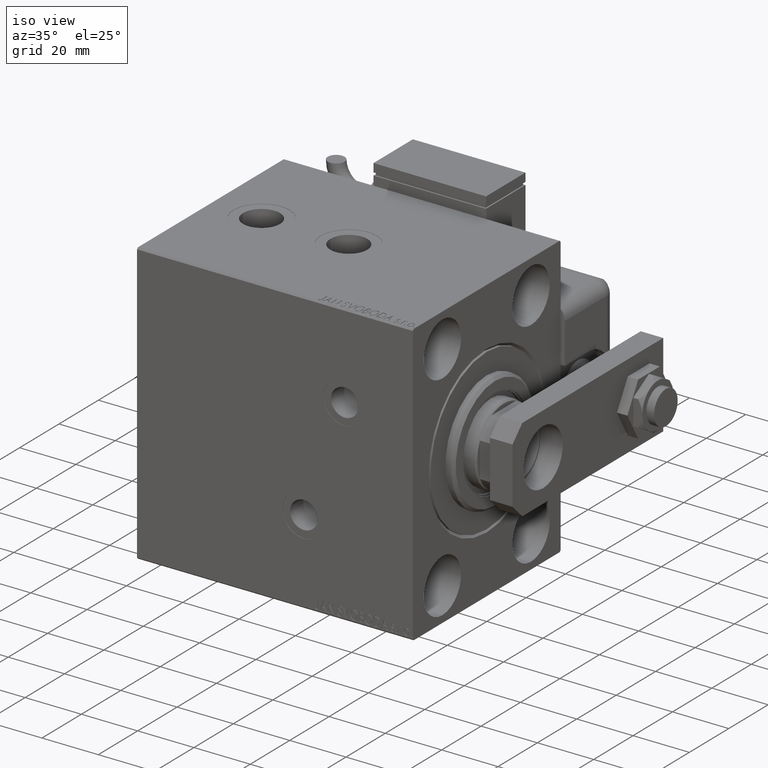
[diagram: clean part render]
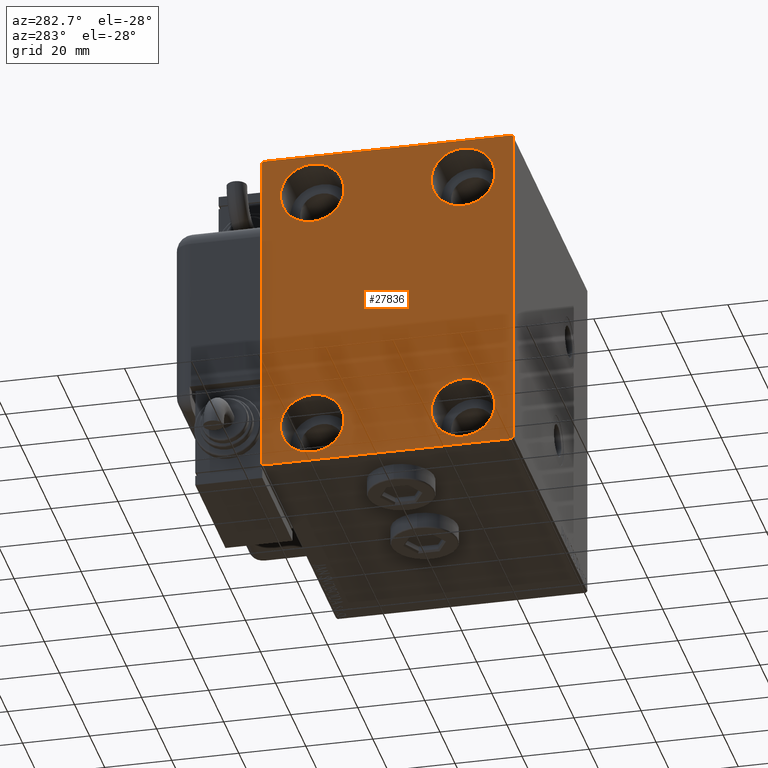
[diagram: tour spotlight — one face highlighted and labeled with its STEP entity id]
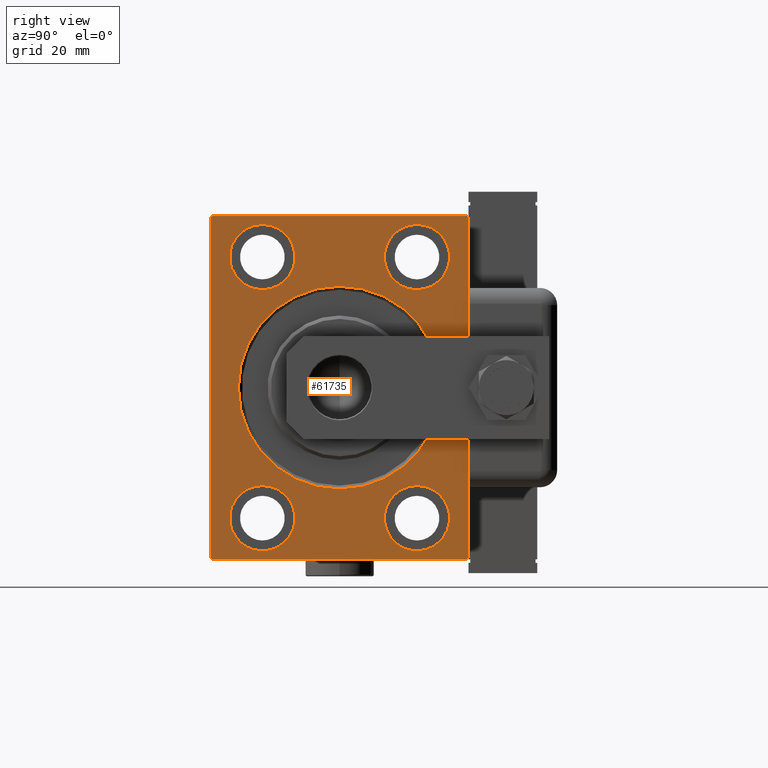
[diagram: tour spotlight — one face highlighted and labeled with its STEP entity id]
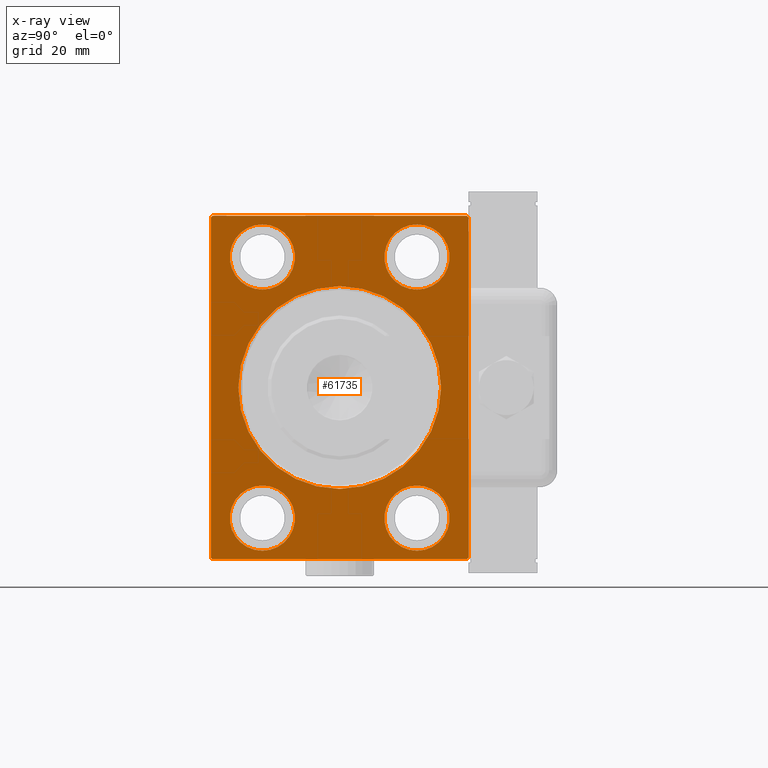
[diagram: x-ray of the same camera — body ghosted, this tour face saturated]
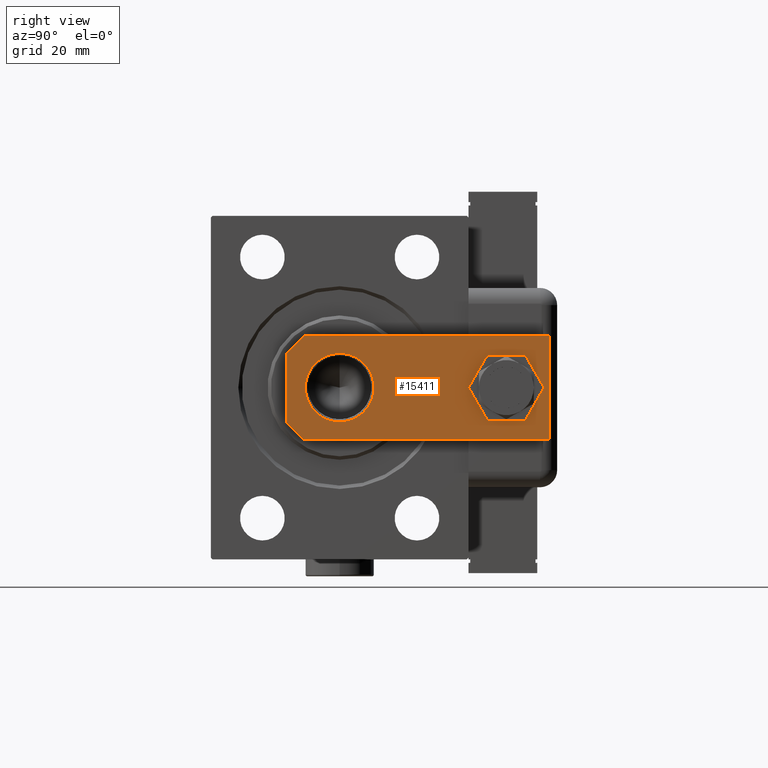
[diagram: tour spotlight — one face highlighted and labeled with its STEP entity id]
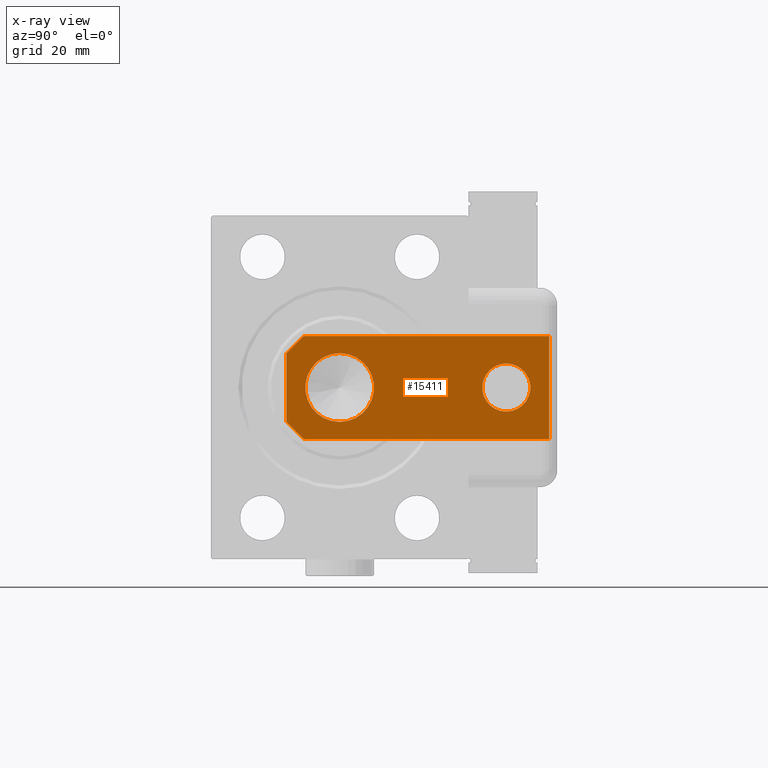
[diagram: x-ray of the same camera — body ghosted, this tour face saturated]
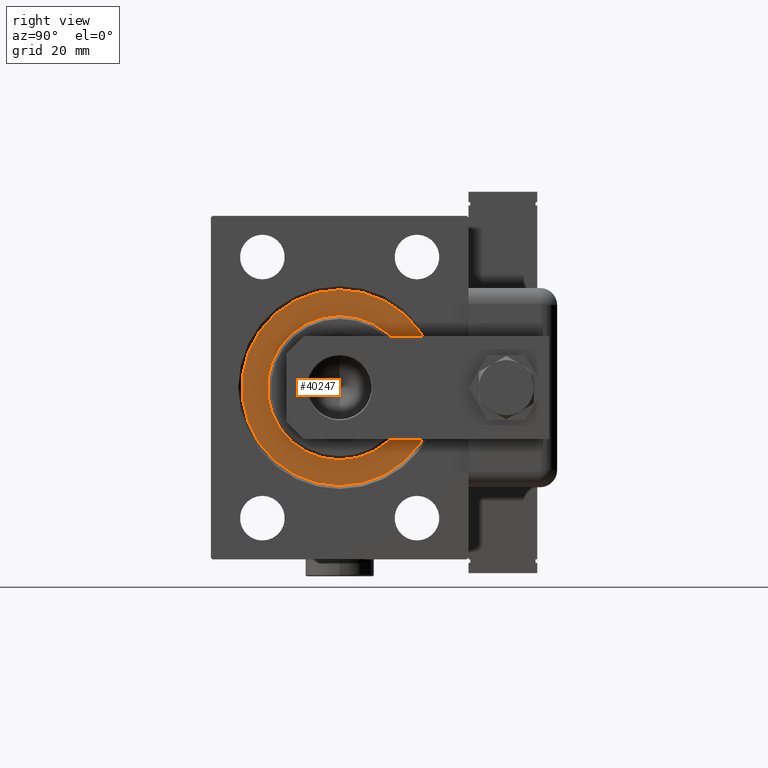
[diagram: tour spotlight — one face highlighted and labeled with its STEP entity id]
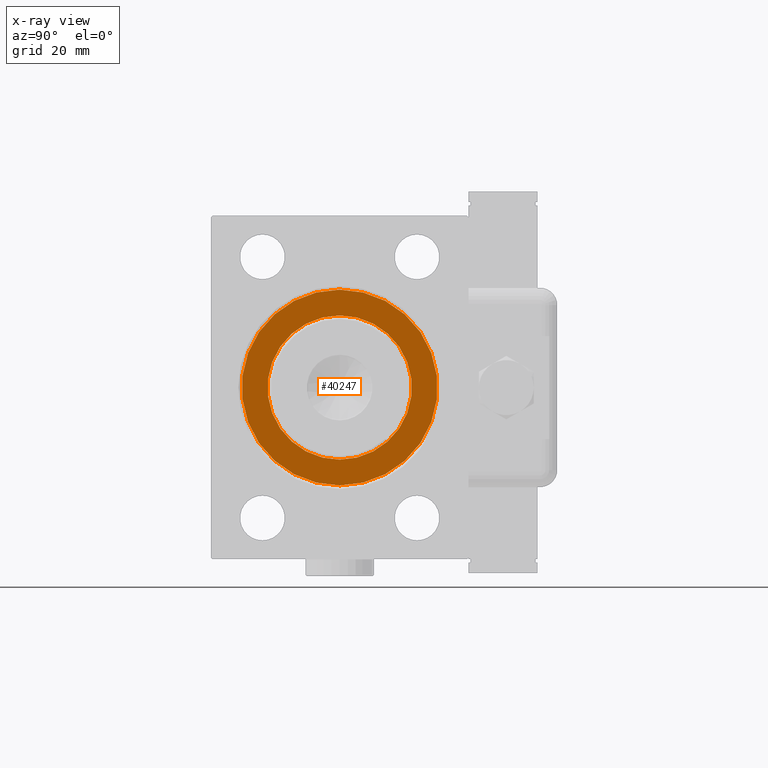
[diagram: x-ray of the same camera — body ghosted, this tour face saturated]
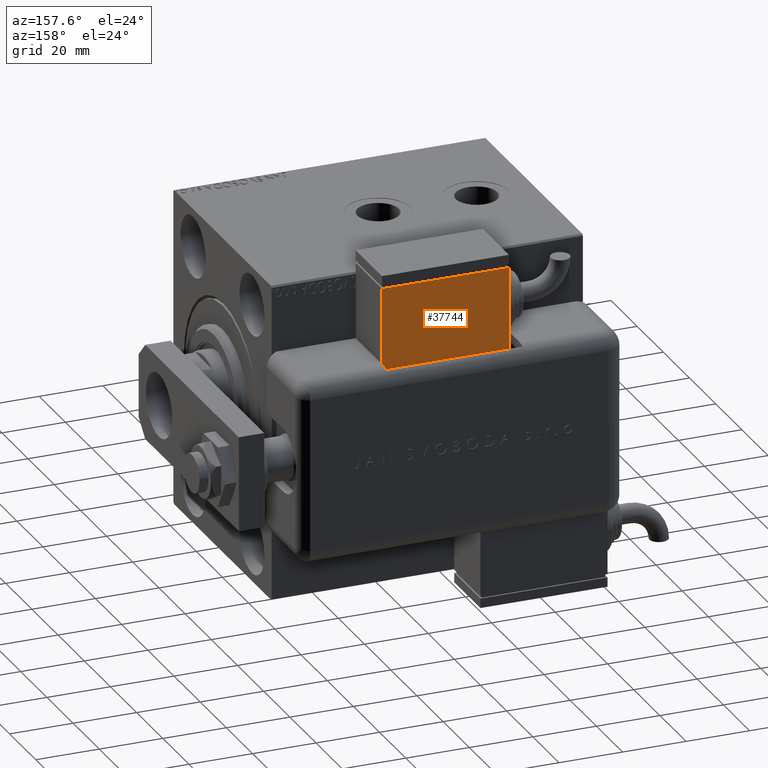
[diagram: tour spotlight — one face highlighted and labeled with its STEP entity id]
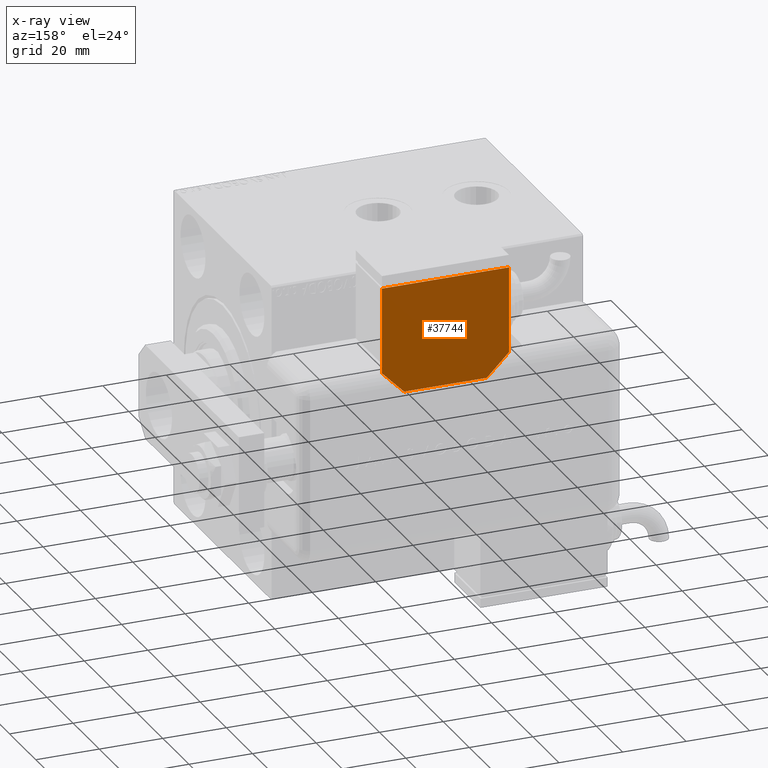
[diagram: x-ray of the same camera — body ghosted, this tour face saturated]
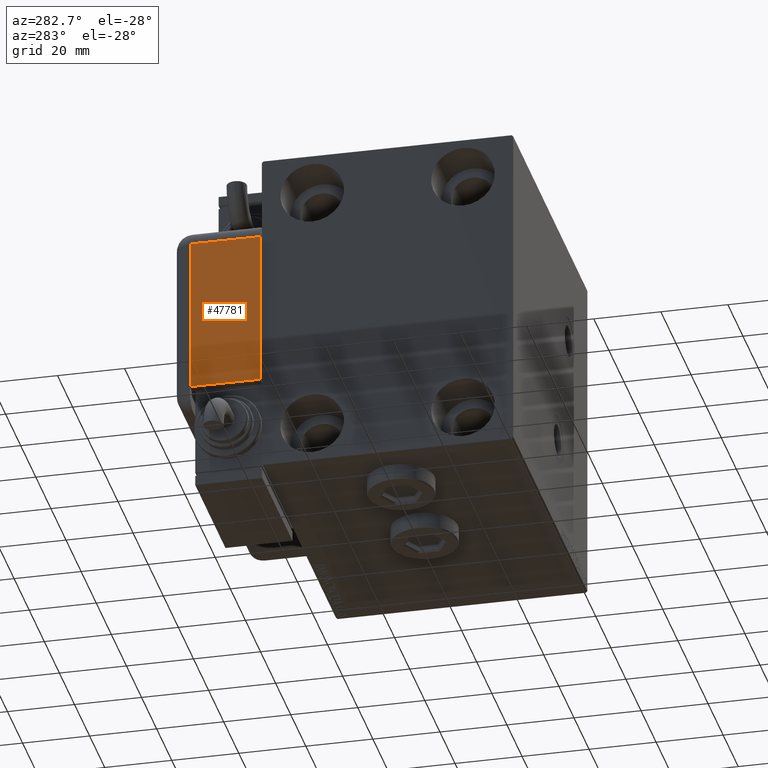
[diagram: tour spotlight — one face highlighted and labeled with its STEP entity id]
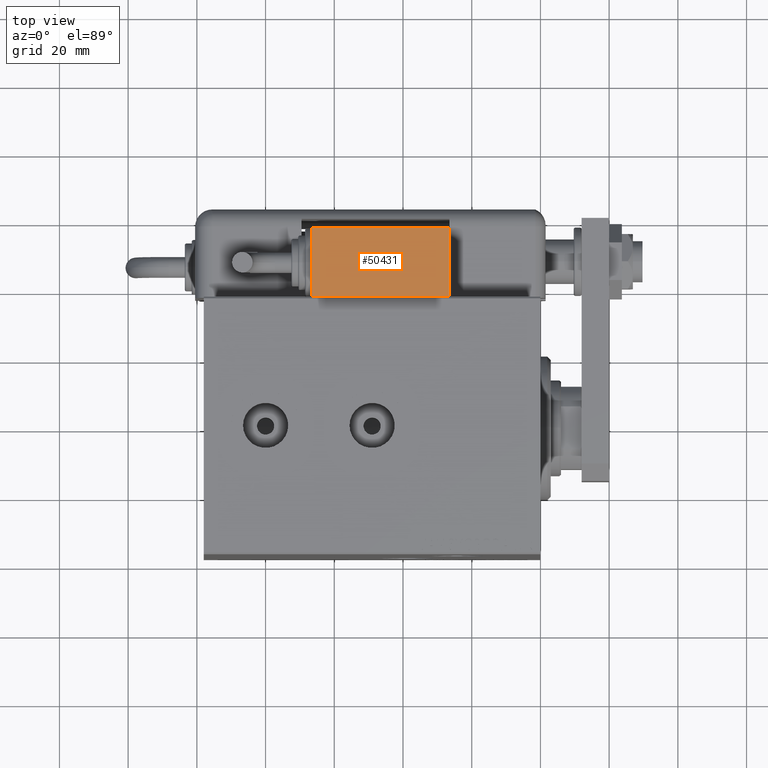
[diagram: tour spotlight — one face highlighted and labeled with its STEP entity id]
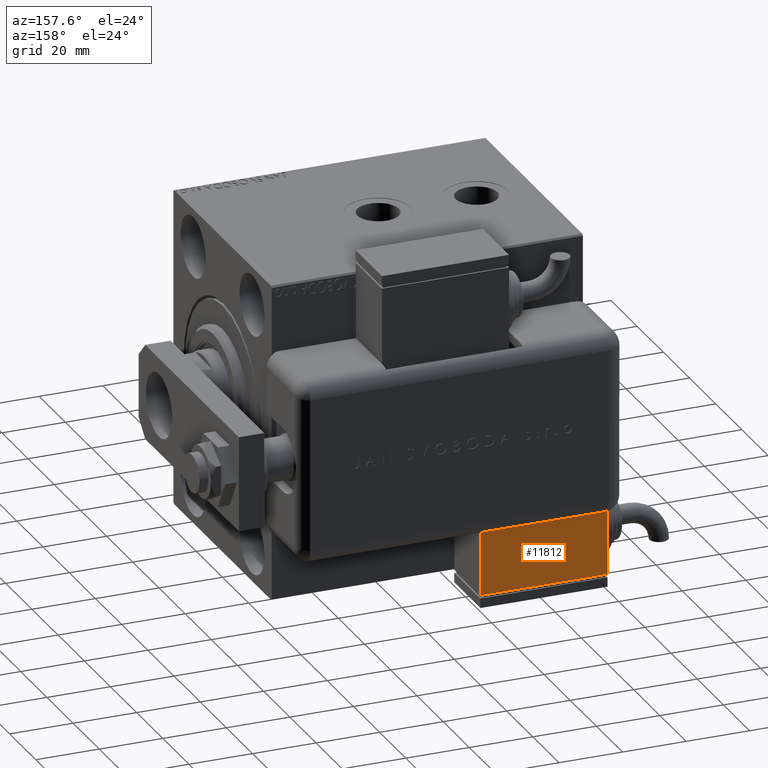
[diagram: tour spotlight — one face highlighted and labeled with its STEP entity id]
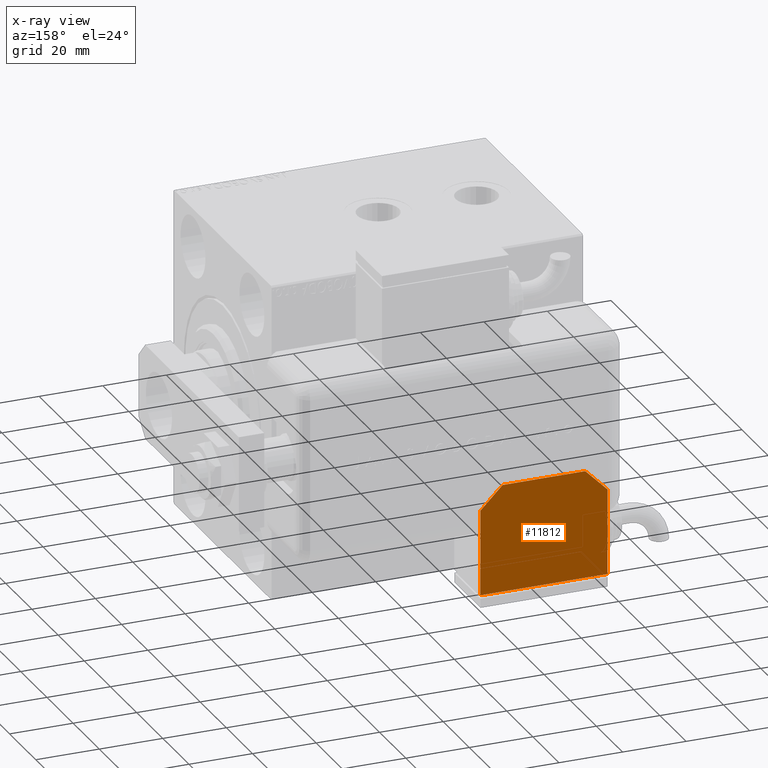
[diagram: x-ray of the same camera — body ghosted, this tour face saturated]
A machine part: a face-by-face anatomy tour. The part has 1327 B-rep faces; the first image is the clean iso view, then the 8 largest visible faces are spotlighted one at a time (largest first), each with its STEP entity span.

Face 1 — auxiliary view, entity #27836. In plain terms, the highlighted planar face has unit normal (-1, 0, 0).
Definition (entity closure, byte-faithful):
#318 = VERTEX_POINT ( 'NONE', #41788 ) ;
#1509 = VERTEX_POINT ( 'NONE', #61060 ) ;
#1705 = DIRECTION ( 'NONE',  ( 0.000000000000000000, 0.000000000000000000, 1.000000000000000000 ) ) ;
#1821 = VECTOR ( 'NONE', #59475, 1000.000000000000114 ) ;
#2287 = CARTESIAN_POINT ( 'NONE',  ( 98.00000000000000000, 37.50000000000000000, -50.00000000000000000 ) ) ;
#3606 = CARTESIAN_POINT ( 'NONE',  ( 98.00000000000000000, 36.99999999999997158, 50.00000000000001421 ) ) ;
#3680 = DIRECTION ( 'NONE',  ( 1.000000000000000000, 0.000000000000000000, 0.000000000000000000 ) ) ;
#3782 = CARTESIAN_POINT ( 'NONE',  ( 98.00000000000000000, 43.49999999999998579, 43.49999999999998579 ) ) ;
#4621 = EDGE_LOOP ( 'NONE', ( #34220, #13581, #61622, #52794, #37350, #38867, #40965, #9209 ) ) ;
#4903 = VERTEX_POINT ( 'NONE', #45378 ) ;
#5199 = CARTESIAN_POINT ( 'NONE',  ( 98.00000000000000000, 37.50000000000000000, -49.50000000000000000 ) ) ;
#5398 = CARTESIAN_POINT ( 'NONE',  ( 98.00000000000000000, -37.50000000000000000, -50.00000000000001421 ) ) ;
#5919 = CARTESIAN_POINT ( 'NONE',  ( 98.00000000000000000, -22.50000000000001421, -38.00000000000000000 ) ) ;
#6226 = DIRECTION ( 'NONE',  ( -1.000000000000000000, -0.000000000000000000, -0.000000000000000000 ) ) ;
#6312 = EDGE_CURVE ( 'NONE', #17230, #24943, #24549, .T. ) ;
#6454 = LINE ( 'NONE', #18586, #28042 ) ;
#6581 = VERTEX_POINT ( 'NONE', #31660 ) ;
#6719 = CARTESIAN_POINT ( 'NONE',  ( 98.00000000000000000, 43.50000000000000711, -43.50000000000000711 ) ) ;
#8365 = FACE_OUTER_BOUND ( 'NONE', #4621, .T. ) ;
#8601 = AXIS2_PLACEMENT_3D ( 'NONE', #10323, #15625, #48394 ) ;
#8849 = ORIENTED_EDGE ( 'NONE', *, *, #28531, .T. ) ;
#8891 = VERTEX_POINT ( 'NONE', #47294 ) ;
#9209 = ORIENTED_EDGE ( 'NONE', *, *, #34774, .T. ) ;
#9448 = DIRECTION ( 'NONE',  ( -1.000000000000000000, -0.000000000000000000, -0.000000000000000000 ) ) ;
#9637 = AXIS2_PLACEMENT_3D ( 'NONE', #10773, #20749, #1705 ) ;
#10047 = CARTESIAN_POINT ( 'NONE',  ( 98.00000000000000000, 22.49999999999999289, -47.50000000000000000 ) ) ;
#10304 = CARTESIAN_POINT ( 'NONE',  ( 98.00000000000000000, -37.50000000000000000, -49.50000000000001421 ) ) ;
#10323 = CARTESIAN_POINT ( 'NONE',  ( 98.00000000000000000, 22.49999999999999645, 37.99999999999999289 ) ) ;
#10773 = CARTESIAN_POINT ( 'NONE',  ( 98.00000000000000000, -22.50000000000000355, 38.00000000000000000 ) ) ;
#11359 = EDGE_LOOP ( 'NONE', ( #59904, #56376 ) ) ;
#11526 = DIRECTION ( 'NONE',  ( -1.000000000000000000, -0.000000000000000000, -0.000000000000000000 ) ) ;
#11894 = EDGE_LOOP ( 'NONE', ( #52785, #33522 ) ) ;
#11989 = LINE ( 'NONE', #2287, #60147 ) ;
#12164 = EDGE_CURVE ( 'NONE', #36298, #1509, #26766, .T. ) ;
#12499 = VERTEX_POINT ( 'NONE', #10047 ) ;
#13055 = FACE_BOUND ( 'NONE', #44575, .T. ) ;
#13289 = VERTEX_POINT ( 'NONE', #24303 ) ;
#13581 = ORIENTED_EDGE ( 'NONE', *, *, #39315, .T. ) ;
#13597 = VECTOR ( 'NONE', #32781, 1000.000000000000114 ) ;
#13768 = LINE ( 'NONE', #3782, #13597 ) ;
#15371 = CARTESIAN_POINT ( 'NONE',  ( 98.00000000000000000, 22.49999999999999289, -38.00000000000000000 ) ) ;
#15625 = DIRECTION ( 'NONE',  ( -1.000000000000000000, -0.000000000000000000, -0.000000000000000000 ) ) ;
#15925 = VERTEX_POINT ( 'NONE', #5199 ) ;
#16207 = DIRECTION ( 'NONE',  ( 0.000000000000000000, 0.000000000000000000, 1.000000000000000000 ) ) ;
#16593 = EDGE_LOOP ( 'NONE', ( #8849, #19524 ) ) ;
#17044 = AXIS2_PLACEMENT_3D ( 'NONE', #58370, #11526, #16207 ) ;
#17230 = VERTEX_POINT ( 'NONE', #51964 ) ;
#17301 = CIRCLE ( 'NONE', #27270, 9.500000000000001776 ) ;
#18586 = CARTESIAN_POINT ( 'NONE',  ( 98.00000000000000000, -43.50000000000000711, -43.50000000000000711 ) ) ;
#19524 = ORIENTED_EDGE ( 'NONE', *, *, #54482, .T. ) ;
#19675 = LINE ( 'NONE', #23733, #54038 ) ;
#20749 = DIRECTION ( 'NONE',  ( -1.000000000000000000, -0.000000000000000000, -0.000000000000000000 ) ) ;
#21498 = CARTESIAN_POINT ( 'NONE',  ( 98.00000000000000000, 0.000000000000000000, 0.000000000000000000 ) ) ;
#22342 = VERTEX_POINT ( 'NONE', #10304 ) ;
#22501 = VERTEX_POINT ( 'NONE', #26184 ) ;
#23733 = CARTESIAN_POINT ( 'NONE',  ( 98.00000000000000000, 37.49999999999998579, 50.00000000000001421 ) ) ;
#24303 = CARTESIAN_POINT ( 'NONE',  ( 98.00000000000000000, 37.00000000000000000, -50.00000000000000000 ) ) ;
#24317 = DIRECTION ( 'NONE',  ( -1.000000000000000000, -0.000000000000000000, -0.000000000000000000 ) ) ;
#24549 = CIRCLE ( 'NONE', #8601, 9.500000000000001776 ) ;
#24943 = VERTEX_POINT ( 'NONE', #55965 ) ;
#25032 = CARTESIAN_POINT ( 'NONE',  ( 98.00000000000000000, -22.50000000000001421, -38.00000000000000000 ) ) ;
#26036 = LINE ( 'NONE', #39447, #1821 ) ;
#26075 = AXIS2_PLACEMENT_3D ( 'NONE', #25032, #9448, #28478 ) ;
#26184 = CARTESIAN_POINT ( 'NONE',  ( 98.00000000000000000, 37.49999999999998579, 49.50000000000000000 ) ) ;
#26706 = CIRCLE ( 'NONE', #34665, 9.500000000000001776 ) ;
#26766 = CIRCLE ( 'NONE', #38726, 9.500000000000001776 ) ;
#26929 = CARTESIAN_POINT ( 'NONE',  ( 98.00000000000000000, -22.50000000000000355, 38.00000000000000000 ) ) ;
#27088 = FACE_BOUND ( 'NONE', #11359, .T. ) ;
#27270 = AXIS2_PLACEMENT_3D ( 'NONE', #5919, #6226, #44280 ) ;
#27393 = PLANE ( 'NONE',  #33355 ) ;
#27836 = ADVANCED_FACE ( 'NONE', ( #55844, #27088, #13055, #32075, #8365 ), #27393, .T. ) ;
#28042 = VECTOR ( 'NONE', #32618, 1000.000000000000114 ) ;
#28267 = VERTEX_POINT ( 'NONE', #3606 ) ;
#28478 = DIRECTION ( 'NONE',  ( 0.000000000000000000, 0.000000000000000000, 1.000000000000000000 ) ) ;
#28531 = EDGE_CURVE ( 'NONE', #44927, #6581, #17301, .T. ) ;
#30055 = DIRECTION ( 'NONE',  ( 0.000000000000000000, 0.000000000000000000, -1.000000000000000000 ) ) ;
#30062 = EDGE_CURVE ( 'NONE', #13289, #15925, #49485, .T. ) ;
#30448 = DIRECTION ( 'NONE',  ( 0.000000000000000000, 0.000000000000000000, 1.000000000000000000 ) ) ;
#30846 = AXIS2_PLACEMENT_3D ( 'NONE', #15371, #34395, #53471 ) ;
#31174 = EDGE_CURVE ( 'NONE', #318, #22342, #44726, .T. ) ;
#31660 = CARTESIAN_POINT ( 'NONE',  ( 98.00000000000000000, -22.50000000000001421, -28.49999999999999645 ) ) ;
#32075 = FACE_BOUND ( 'NONE', #11894, .T. ) ;
#32618 = DIRECTION ( 'NONE',  ( -0.000000000000000000, 0.7071067811865474617, -0.7071067811865474617 ) ) ;
#32683 = VECTOR ( 'NONE', #52551, 1000.000000000000000 ) ;
#32781 = DIRECTION ( 'NONE',  ( -0.000000000000000000, -0.7071067811865474617, 0.7071067811865474617 ) ) ;
#33310 = VECTOR ( 'NONE', #30055, 1000.000000000000000 ) ;
#33355 = AXIS2_PLACEMENT_3D ( 'NONE', #21498, #3680, #45510 ) ;
#33491 = CIRCLE ( 'NONE', #9637, 9.500000000000001776 ) ;
#33522 = ORIENTED_EDGE ( 'NONE', *, *, #51969, .T. ) ;
#34220 = ORIENTED_EDGE ( 'NONE', *, *, #58154, .T. ) ;
#34358 = CARTESIAN_POINT ( 'NONE',  ( 98.00000000000000000, -22.50000000000001421, -47.50000000000000000 ) ) ;
#34395 = DIRECTION ( 'NONE',  ( -1.000000000000000000, -0.000000000000000000, -0.000000000000000000 ) ) ;
#34665 = AXIS2_PLACEMENT_3D ( 'NONE', #53900, #24317, #30448 ) ;
#34774 = EDGE_CURVE ( 'NONE', #22501, #28267, #13768, .T. ) ;
#35602 = EDGE_CURVE ( 'NONE', #1509, #36298, #33491, .T. ) ;
#36298 = VERTEX_POINT ( 'NONE', #53959 ) ;
#37033 = CIRCLE ( 'NONE', #26075, 9.500000000000001776 ) ;
#37350 = ORIENTED_EDGE ( 'NONE', *, *, #39552, .T. ) ;
#38065 = DIRECTION ( 'NONE',  ( 0.000000000000000000, -1.000000000000000000, -3.700743415417189125E-16 ) ) ;
#38516 = ORIENTED_EDGE ( 'NONE', *, *, #44439, .T. ) ;
#38726 = AXIS2_PLACEMENT_3D ( 'NONE', #26929, #50342, #45659 ) ;
#38867 = ORIENTED_EDGE ( 'NONE', *, *, #30062, .T. ) ;
#39265 = VECTOR ( 'NONE', #44785, 1000.000000000000114 ) ;
#39315 = EDGE_CURVE ( 'NONE', #8891, #318, #26036, .T. ) ;
#39447 = CARTESIAN_POINT ( 'NONE',  ( 98.00000000000000000, -43.49999999999999289, 43.49999999999999289 ) ) ;
#39552 = EDGE_CURVE ( 'NONE', #4903, #13289, #42847, .T. ) ;
#40694 = VERTEX_POINT ( 'NONE', #47364 ) ;
#40965 = ORIENTED_EDGE ( 'NONE', *, *, #61717, .T. ) ;
#40968 = DIRECTION ( 'NONE',  ( 0.000000000000000000, -1.387778780781445429E-16, 1.000000000000000000 ) ) ;
#41788 = CARTESIAN_POINT ( 'NONE',  ( 98.00000000000000000, -37.50000000000000000, 49.49999999999998579 ) ) ;
#41799 = CIRCLE ( 'NONE', #30846, 9.500000000000001776 ) ;
#42847 = LINE ( 'NONE', #5398, #32683 ) ;
#43947 = CIRCLE ( 'NONE', #17044, 9.500000000000001776 ) ;
#44280 = DIRECTION ( 'NONE',  ( 0.000000000000000000, 0.000000000000000000, 1.000000000000000000 ) ) ;
#44439 = EDGE_CURVE ( 'NONE', #24943, #17230, #26706, .T. ) ;
#44575 = EDGE_LOOP ( 'NONE', ( #38516, #55149 ) ) ;
#44726 = LINE ( 'NONE', #54125, #33310 ) ;
#44785 = DIRECTION ( 'NONE',  ( -0.000000000000000000, 0.7071067811865474617, 0.7071067811865474617 ) ) ;
#44927 = VERTEX_POINT ( 'NONE', #34358 ) ;
#45378 = CARTESIAN_POINT ( 'NONE',  ( 98.00000000000000000, -37.00000000000000000, -50.00000000000001421 ) ) ;
#45510 = DIRECTION ( 'NONE',  ( 0.000000000000000000, 0.000000000000000000, -1.000000000000000000 ) ) ;
#45659 = DIRECTION ( 'NONE',  ( 0.000000000000000000, 0.000000000000000000, 1.000000000000000000 ) ) ;
#47294 = CARTESIAN_POINT ( 'NONE',  ( 98.00000000000000000, -37.00000000000000000, 49.99999999999998579 ) ) ;
#47364 = CARTESIAN_POINT ( 'NONE',  ( 98.00000000000000000, 22.49999999999999289, -28.49999999999999645 ) ) ;
#48066 = EDGE_CURVE ( 'NONE', #12499, #40694, #41799, .T. ) ;
#48394 = DIRECTION ( 'NONE',  ( 0.000000000000000000, 0.000000000000000000, 1.000000000000000000 ) ) ;
#49485 = LINE ( 'NONE', #6719, #39265 ) ;
#50342 = DIRECTION ( 'NONE',  ( -1.000000000000000000, -0.000000000000000000, -0.000000000000000000 ) ) ;
#51964 = CARTESIAN_POINT ( 'NONE',  ( 98.00000000000000000, 22.49999999999999645, 47.49999999999999289 ) ) ;
#51969 = EDGE_CURVE ( 'NONE', #40694, #12499, #43947, .T. ) ;
#52551 = DIRECTION ( 'NONE',  ( 0.000000000000000000, 1.000000000000000000, 1.850371707708594316E-16 ) ) ;
#52785 = ORIENTED_EDGE ( 'NONE', *, *, #48066, .T. ) ;
#52794 = ORIENTED_EDGE ( 'NONE', *, *, #57481, .T. ) ;
#53471 = DIRECTION ( 'NONE',  ( 0.000000000000000000, 0.000000000000000000, 1.000000000000000000 ) ) ;
#53900 = CARTESIAN_POINT ( 'NONE',  ( 98.00000000000000000, 22.49999999999999645, 37.99999999999999289 ) ) ;
#53959 = CARTESIAN_POINT ( 'NONE',  ( 98.00000000000000000, -22.50000000000000355, 28.49999999999999645 ) ) ;
#54038 = VECTOR ( 'NONE', #38065, 1000.000000000000000 ) ;
#54125 = CARTESIAN_POINT ( 'NONE',  ( 98.00000000000000000, -37.50000000000000000, 49.99999999999998579 ) ) ;
#54482 = EDGE_CURVE ( 'NONE', #6581, #44927, #37033, .T. ) ;
#55149 = ORIENTED_EDGE ( 'NONE', *, *, #6312, .T. ) ;
#55844 = FACE_BOUND ( 'NONE', #16593, .T. ) ;
#55965 = CARTESIAN_POINT ( 'NONE',  ( 98.00000000000000000, 22.49999999999999645, 28.49999999999998934 ) ) ;
#56376 = ORIENTED_EDGE ( 'NONE', *, *, #35602, .T. ) ;
#57481 = EDGE_CURVE ( 'NONE', #22342, #4903, #6454, .T. ) ;
#58154 = EDGE_CURVE ( 'NONE', #28267, #8891, #19675, .T. ) ;
#58370 = CARTESIAN_POINT ( 'NONE',  ( 98.00000000000000000, 22.49999999999999289, -38.00000000000000000 ) ) ;
#59475 = DIRECTION ( 'NONE',  ( 0.000000000000000000, -0.7071067811865474617, -0.7071067811865474617 ) ) ;
#59904 = ORIENTED_EDGE ( 'NONE', *, *, #12164, .T. ) ;
#60147 = VECTOR ( 'NONE', #40968, 1000.000000000000000 ) ;
#61060 = CARTESIAN_POINT ( 'NONE',  ( 98.00000000000000000, -22.50000000000000355, 47.50000000000000000 ) ) ;
#61622 = ORIENTED_EDGE ( 'NONE', *, *, #31174, .T. ) ;
#61717 = EDGE_CURVE ( 'NONE', #15925, #22501, #11989, .T. ) ;

Face 2 — right view, entity #61735. An x-ray twin of the same camera follows (body ghosted, this face saturated) — the face is partly hidden behind the body. In plain terms, the highlighted planar face has unit normal (-1, 0, 0).
Definition (entity closure, byte-faithful):
#217 = VERTEX_POINT ( 'NONE', #15936 ) ;
#404 = EDGE_CURVE ( 'NONE', #43035, #10694, #60364, .T. ) ;
#507 = CARTESIAN_POINT ( 'NONE',  ( 0.000000000000000000, -22.50000000000000355, 38.00000000000000000 ) ) ;
#646 = EDGE_CURVE ( 'NONE', #10694, #43035, #31402, .T. ) ;
#738 = EDGE_CURVE ( 'NONE', #14067, #56106, #24421, .T. ) ;
#846 = VECTOR ( 'NONE', #36968, 1000.000000000000000 ) ;
#1290 = CARTESIAN_POINT ( 'NONE',  ( 0.000000000000000000, -37.50000000000000000, 49.49999999999998579 ) ) ;
#1672 = LINE ( 'NONE', #2599, #43886 ) ;
#2086 = LINE ( 'NONE', #44219, #30647 ) ;
#2099 = VERTEX_POINT ( 'NONE', #38737 ) ;
#2144 = CIRCLE ( 'NONE', #15118, 9.500000000000001776 ) ;
#2284 = ORIENTED_EDGE ( 'NONE', *, *, #646, .T. ) ;
#2599 = CARTESIAN_POINT ( 'NONE',  ( 0.000000000000000000, -37.50000000000000000, -50.00000000000001421 ) ) ;
#3219 = FACE_BOUND ( 'NONE', #3331, .T. ) ;
#3331 = EDGE_LOOP ( 'NONE', ( #42048, #25480 ) ) ;
#3531 = FACE_BOUND ( 'NONE', #54323, .T. ) ;
#3553 = ORIENTED_EDGE ( 'NONE', *, *, #738, .F. ) ;
#4242 = AXIS2_PLACEMENT_3D ( 'NONE', #507, #24830, #43857 ) ;
#5471 = DIRECTION ( 'NONE',  ( 0.000000000000000000, 0.000000000000000000, -1.000000000000000000 ) ) ;
#5526 = DIRECTION ( 'NONE',  ( -0.000000000000000000, -0.7071067811865474617, 0.7071067811865474617 ) ) ;
#5694 = LINE ( 'NONE', #60858, #56608 ) ;
#5703 = ORIENTED_EDGE ( 'NONE', *, *, #12979, .F. ) ;
#6143 = LINE ( 'NONE', #24565, #21943 ) ;
#6708 = DIRECTION ( 'NONE',  ( -1.000000000000000000, 0.000000000000000000, 0.000000000000000000 ) ) ;
#6936 = LINE ( 'NONE', #39070, #10780 ) ;
#7064 = ORIENTED_EDGE ( 'NONE', *, *, #34857, .T. ) ;
#7601 = FACE_BOUND ( 'NONE', #34700, .T. ) ;
#8823 = ORIENTED_EDGE ( 'NONE', *, *, #50256, .T. ) ;
#9268 = ORIENTED_EDGE ( 'NONE', *, *, #39222, .F. ) ;
#9522 = ORIENTED_EDGE ( 'NONE', *, *, #48408, .F. ) ;
#10166 = DIRECTION ( 'NONE',  ( -1.000000000000000000, 0.000000000000000000, 0.000000000000000000 ) ) ;
#10384 = DIRECTION ( 'NONE',  ( -0.000000000000000000, 0.7071067811865474617, 0.7071067811865474617 ) ) ;
#10487 = CARTESIAN_POINT ( 'NONE',  ( 0.000000000000000000, 22.49999999999999289, -38.00000000000000000 ) ) ;
#10694 = VERTEX_POINT ( 'NONE', #17098 ) ;
#10780 = VECTOR ( 'NONE', #10384, 1000.000000000000114 ) ;
#10800 = DIRECTION ( 'NONE',  ( 0.000000000000000000, 0.000000000000000000, 1.000000000000000000 ) ) ;
#11294 = ORIENTED_EDGE ( 'NONE', *, *, #11884, .F. ) ;
#11884 = EDGE_CURVE ( 'NONE', #35572, #17037, #22018, .T. ) ;
#12183 = DIRECTION ( 'NONE',  ( -1.000000000000000000, 0.000000000000000000, 0.000000000000000000 ) ) ;
#12329 = CARTESIAN_POINT ( 'NONE',  ( 0.000000000000000000, 3.612708057484693970E-15, -29.50000000000001421 ) ) ;
#12505 = DIRECTION ( 'NONE',  ( 0.000000000000000000, 0.000000000000000000, 1.000000000000000000 ) ) ;
#12646 = VERTEX_POINT ( 'NONE', #48639 ) ;
#12979 = EDGE_CURVE ( 'NONE', #2099, #14427, #18943, .T. ) ;
#13842 = DIRECTION ( 'NONE',  ( 0.000000000000000000, 0.000000000000000000, 1.000000000000000000 ) ) ;
#14067 = VERTEX_POINT ( 'NONE', #25603 ) ;
#14082 = ORIENTED_EDGE ( 'NONE', *, *, #404, .T. ) ;
#14427 = VERTEX_POINT ( 'NONE', #46655 ) ;
#14598 = EDGE_LOOP ( 'NONE', ( #32290, #9522 ) ) ;
#14919 = VERTEX_POINT ( 'NONE', #16872 ) ;
#15118 = AXIS2_PLACEMENT_3D ( 'NONE', #33466, #47837, #13842 ) ;
#15303 = EDGE_CURVE ( 'NONE', #14919, #12646, #34837, .T. ) ;
#15936 = CARTESIAN_POINT ( 'NONE',  ( 0.000000000000000000, 36.99999999999997158, 50.00000000000001421 ) ) ;
#16072 = CARTESIAN_POINT ( 'NONE',  ( 0.000000000000000000, -22.50000000000000355, 28.49999999999999645 ) ) ;
#16872 = CARTESIAN_POINT ( 'NONE',  ( 0.000000000000000000, 22.49999999999999645, 47.49999999999999289 ) ) ;
#17037 = VERTEX_POINT ( 'NONE', #50734 ) ;
#17098 = CARTESIAN_POINT ( 'NONE',  ( 0.000000000000000000, 0.000000000000000000, 29.50000000000001421 ) ) ;
#17276 = FACE_OUTER_BOUND ( 'NONE', #49267, .T. ) ;
#17331 = EDGE_CURVE ( 'NONE', #48988, #29145, #1672, .T. ) ;
#17943 = EDGE_CURVE ( 'NONE', #14427, #2099, #35948, .T. ) ;
#18943 = CIRCLE ( 'NONE', #32919, 9.500000000000001776 ) ;
#19386 = AXIS2_PLACEMENT_3D ( 'NONE', #40253, #48413, #12505 ) ;
#20179 = CARTESIAN_POINT ( 'NONE',  ( 0.000000000000000000, -37.00000000000000000, -50.00000000000001421 ) ) ;
#20470 = DIRECTION ( 'NONE',  ( -1.000000000000000000, 0.000000000000000000, 0.000000000000000000 ) ) ;
#20572 = DIRECTION ( 'NONE',  ( 0.000000000000000000, 0.000000000000000000, 1.000000000000000000 ) ) ;
#20760 = DIRECTION ( 'NONE',  ( 0.000000000000000000, 0.000000000000000000, 1.000000000000000000 ) ) ;
#21643 = FACE_BOUND ( 'NONE', #54633, .T. ) ;
#21943 = VECTOR ( 'NONE', #5526, 1000.000000000000114 ) ;
#22018 = LINE ( 'NONE', #45426, #846 ) ;
#23139 = VERTEX_POINT ( 'NONE', #16072 ) ;
#23568 = VERTEX_POINT ( 'NONE', #29497 ) ;
#24421 = CIRCLE ( 'NONE', #59337, 9.500000000000001776 ) ;
#24523 = DIRECTION ( 'NONE',  ( 0.000000000000000000, 0.000000000000000000, 1.000000000000000000 ) ) ;
#24565 = CARTESIAN_POINT ( 'NONE',  ( 0.000000000000000000, -37.00000000000000000, -50.00000000000001421 ) ) ;
#24818 = CARTESIAN_POINT ( 'NONE',  ( 0.000000000000000000, 37.50000000000000000, -49.50000000000000000 ) ) ;
#24830 = DIRECTION ( 'NONE',  ( -1.000000000000000000, 0.000000000000000000, 0.000000000000000000 ) ) ;
#25480 = ORIENTED_EDGE ( 'NONE', *, *, #59844, .F. ) ;
#25603 = CARTESIAN_POINT ( 'NONE',  ( 0.000000000000000000, 22.49999999999999289, -28.49999999999999645 ) ) ;
#26736 = EDGE_CURVE ( 'NONE', #38761, #23139, #43311, .T. ) ;
#26839 = AXIS2_PLACEMENT_3D ( 'NONE', #38841, #10166, #24523 ) ;
#27245 = DIRECTION ( 'NONE',  ( 1.000000000000000000, 0.000000000000000000, 0.000000000000000000 ) ) ;
#28073 = ORIENTED_EDGE ( 'NONE', *, *, #42337, .T. ) ;
#28260 = CARTESIAN_POINT ( 'NONE',  ( 0.000000000000000000, -37.50000000000000000, 49.99999999999998579 ) ) ;
#28282 = CARTESIAN_POINT ( 'NONE',  ( 0.000000000000000000, 0.000000000000000000, 0.000000000000000000 ) ) ;
#29145 = VERTEX_POINT ( 'NONE', #52865 ) ;
#29184 = LINE ( 'NONE', #28260, #38650 ) ;
#29497 = CARTESIAN_POINT ( 'NONE',  ( 0.000000000000000000, -37.00000000000000000, 49.99999999999998579 ) ) ;
#30391 = ORIENTED_EDGE ( 'NONE', *, *, #57915, .F. ) ;
#30425 = AXIS2_PLACEMENT_3D ( 'NONE', #28282, #32961, #61422 ) ;
#30647 = VECTOR ( 'NONE', #54246, 1000.000000000000114 ) ;
#31402 = CIRCLE ( 'NONE', #30425, 29.50000000000001421 ) ;
#31504 = DIRECTION ( 'NONE',  ( 0.000000000000000000, 0.000000000000000000, 1.000000000000000000 ) ) ;
#32290 = ORIENTED_EDGE ( 'NONE', *, *, #15303, .F. ) ;
#32404 = VERTEX_POINT ( 'NONE', #49869 ) ;
#32729 = DIRECTION ( 'NONE',  ( 1.000000000000000000, 0.000000000000000000, 0.000000000000000000 ) ) ;
#32919 = AXIS2_PLACEMENT_3D ( 'NONE', #50239, #12183, #31504 ) ;
#32961 = DIRECTION ( 'NONE',  ( 1.000000000000000000, 0.000000000000000000, 0.000000000000000000 ) ) ;
#33466 = CARTESIAN_POINT ( 'NONE',  ( 0.000000000000000000, 22.49999999999999289, -38.00000000000000000 ) ) ;
#34700 = EDGE_LOOP ( 'NONE', ( #2284, #14082 ) ) ;
#34787 = CARTESIAN_POINT ( 'NONE',  ( 0.000000000000000000, 22.49999999999999645, 37.99999999999999289 ) ) ;
#34802 = CIRCLE ( 'NONE', #26839, 9.500000000000001776 ) ;
#34837 = CIRCLE ( 'NONE', #44824, 9.500000000000001776 ) ;
#34857 = EDGE_CURVE ( 'NONE', #217, #17037, #41843, .T. ) ;
#35572 = VERTEX_POINT ( 'NONE', #24818 ) ;
#35948 = CIRCLE ( 'NONE', #37945, 9.500000000000001776 ) ;
#36129 = CARTESIAN_POINT ( 'NONE',  ( 0.000000000000000000, -22.50000000000001421, -38.00000000000000000 ) ) ;
#36968 = DIRECTION ( 'NONE',  ( 0.000000000000000000, -1.387778780781445429E-16, 1.000000000000000000 ) ) ;
#37190 = AXIS2_PLACEMENT_3D ( 'NONE', #50351, #27245, #60061 ) ;
#37487 = VECTOR ( 'NONE', #55327, 1000.000000000000114 ) ;
#37945 = AXIS2_PLACEMENT_3D ( 'NONE', #36129, #55226, #20572 ) ;
#38298 = CARTESIAN_POINT ( 'NONE',  ( 0.000000000000000000, -22.50000000000000355, 47.50000000000000000 ) ) ;
#38650 = VECTOR ( 'NONE', #5471, 1000.000000000000000 ) ;
#38737 = CARTESIAN_POINT ( 'NONE',  ( 0.000000000000000000, -22.50000000000001421, -47.50000000000000000 ) ) ;
#38761 = VERTEX_POINT ( 'NONE', #38298 ) ;
#38797 = EDGE_CURVE ( 'NONE', #35572, #29145, #2086, .T. ) ;
#38841 = CARTESIAN_POINT ( 'NONE',  ( 0.000000000000000000, 22.49999999999999645, 37.99999999999999289 ) ) ;
#39070 = CARTESIAN_POINT ( 'NONE',  ( 0.000000000000000000, -37.50000000000000000, 49.49999999999998579 ) ) ;
#39222 = EDGE_CURVE ( 'NONE', #49699, #32404, #29184, .T. ) ;
#40253 = CARTESIAN_POINT ( 'NONE',  ( 0.000000000000000000, -22.50000000000000355, 38.00000000000000000 ) ) ;
#41309 = CARTESIAN_POINT ( 'NONE',  ( 0.000000000000000000, 22.49999999999999289, -47.50000000000000000 ) ) ;
#41360 = EDGE_CURVE ( 'NONE', #217, #23568, #5694, .T. ) ;
#41766 = DIRECTION ( 'NONE',  ( 0.000000000000000000, -1.000000000000000000, -3.700743415417189125E-16 ) ) ;
#41843 = LINE ( 'NONE', #47149, #37487 ) ;
#42048 = ORIENTED_EDGE ( 'NONE', *, *, #26736, .F. ) ;
#42337 = EDGE_CURVE ( 'NONE', #49699, #23568, #6936, .T. ) ;
#43035 = VERTEX_POINT ( 'NONE', #12329 ) ;
#43311 = CIRCLE ( 'NONE', #19386, 9.500000000000001776 ) ;
#43857 = DIRECTION ( 'NONE',  ( 0.000000000000000000, 0.000000000000000000, 1.000000000000000000 ) ) ;
#43886 = VECTOR ( 'NONE', #54762, 1000.000000000000000 ) ;
#44219 = CARTESIAN_POINT ( 'NONE',  ( 0.000000000000000000, 37.50000000000000000, -49.50000000000000000 ) ) ;
#44824 = AXIS2_PLACEMENT_3D ( 'NONE', #34787, #6708, #20760 ) ;
#45426 = CARTESIAN_POINT ( 'NONE',  ( 0.000000000000000000, 37.50000000000000000, -50.00000000000000000 ) ) ;
#45668 = PLANE ( 'NONE',  #37190 ) ;
#46655 = CARTESIAN_POINT ( 'NONE',  ( 0.000000000000000000, -22.50000000000001421, -28.49999999999999645 ) ) ;
#46974 = ORIENTED_EDGE ( 'NONE', *, *, #17331, .F. ) ;
#47149 = CARTESIAN_POINT ( 'NONE',  ( 0.000000000000000000, 36.99999999999997158, 50.00000000000001421 ) ) ;
#47837 = DIRECTION ( 'NONE',  ( -1.000000000000000000, 0.000000000000000000, 0.000000000000000000 ) ) ;
#48408 = EDGE_CURVE ( 'NONE', #12646, #14919, #34802, .T. ) ;
#48413 = DIRECTION ( 'NONE',  ( -1.000000000000000000, 0.000000000000000000, 0.000000000000000000 ) ) ;
#48639 = CARTESIAN_POINT ( 'NONE',  ( 0.000000000000000000, 22.49999999999999645, 28.49999999999998934 ) ) ;
#48988 = VERTEX_POINT ( 'NONE', #20179 ) ;
#49267 = EDGE_LOOP ( 'NONE', ( #9268, #28073, #59831, #7064, #11294, #52546, #46974, #8823 ) ) ;
#49699 = VERTEX_POINT ( 'NONE', #1290 ) ;
#49869 = CARTESIAN_POINT ( 'NONE',  ( 0.000000000000000000, -37.50000000000000000, -49.50000000000001421 ) ) ;
#50239 = CARTESIAN_POINT ( 'NONE',  ( 0.000000000000000000, -22.50000000000001421, -38.00000000000000000 ) ) ;
#50256 = EDGE_CURVE ( 'NONE', #48988, #32404, #6143, .T. ) ;
#50351 = CARTESIAN_POINT ( 'NONE',  ( 0.000000000000000000, 0.000000000000000000, 0.000000000000000000 ) ) ;
#50734 = CARTESIAN_POINT ( 'NONE',  ( 0.000000000000000000, 37.49999999999998579, 49.50000000000000000 ) ) ;
#52411 = DIRECTION ( 'NONE',  ( 0.000000000000000000, 0.000000000000000000, -1.000000000000000000 ) ) ;
#52546 = ORIENTED_EDGE ( 'NONE', *, *, #38797, .T. ) ;
#52865 = CARTESIAN_POINT ( 'NONE',  ( 0.000000000000000000, 37.00000000000000000, -50.00000000000000000 ) ) ;
#54246 = DIRECTION ( 'NONE',  ( 0.000000000000000000, -0.7071067811865474617, -0.7071067811865474617 ) ) ;
#54323 = EDGE_LOOP ( 'NONE', ( #3553, #30391 ) ) ;
#54633 = EDGE_LOOP ( 'NONE', ( #58844, #5703 ) ) ;
#54762 = DIRECTION ( 'NONE',  ( 0.000000000000000000, 1.000000000000000000, 1.850371707708594316E-16 ) ) ;
#55226 = DIRECTION ( 'NONE',  ( -1.000000000000000000, 0.000000000000000000, 0.000000000000000000 ) ) ;
#55327 = DIRECTION ( 'NONE',  ( -0.000000000000000000, 0.7071067811865474617, -0.7071067811865474617 ) ) ;
#55378 = AXIS2_PLACEMENT_3D ( 'NONE', #57107, #32729, #52411 ) ;
#56103 = CIRCLE ( 'NONE', #4242, 9.500000000000001776 ) ;
#56106 = VERTEX_POINT ( 'NONE', #41309 ) ;
#56608 = VECTOR ( 'NONE', #41766, 1000.000000000000000 ) ;
#57107 = CARTESIAN_POINT ( 'NONE',  ( 0.000000000000000000, 0.000000000000000000, 0.000000000000000000 ) ) ;
#57915 = EDGE_CURVE ( 'NONE', #56106, #14067, #2144, .T. ) ;
#58844 = ORIENTED_EDGE ( 'NONE', *, *, #17943, .F. ) ;
#59337 = AXIS2_PLACEMENT_3D ( 'NONE', #10487, #20470, #10800 ) ;
#59749 = FACE_BOUND ( 'NONE', #14598, .T. ) ;
#59831 = ORIENTED_EDGE ( 'NONE', *, *, #41360, .F. ) ;
#59844 = EDGE_CURVE ( 'NONE', #23139, #38761, #56103, .T. ) ;
#60061 = DIRECTION ( 'NONE',  ( 0.000000000000000000, 0.000000000000000000, -1.000000000000000000 ) ) ;
#60364 = CIRCLE ( 'NONE', #55378, 29.50000000000001421 ) ;
#60858 = CARTESIAN_POINT ( 'NONE',  ( 0.000000000000000000, 37.49999999999998579, 50.00000000000001421 ) ) ;
#61422 = DIRECTION ( 'NONE',  ( 0.000000000000000000, 0.000000000000000000, -1.000000000000000000 ) ) ;
#61735 = ADVANCED_FACE ( 'NONE', ( #7601, #21643, #3219, #59749, #3531, #17276 ), #45668, .F. ) ;

Face 3 — right view, entity #15411. An x-ray twin of the same camera follows (body ghosted, this face saturated) — the face is partly hidden behind the body. In plain terms, the highlighted planar face has unit normal (-1, 0, 0).
Definition (entity closure, byte-faithful):
#746 = VECTOR ( 'NONE', #59097, 1000.000000000000000 ) ;
#1052 = FACE_BOUND ( 'NONE', #43152, .T. ) ;
#1698 = VERTEX_POINT ( 'NONE', #47580 ) ;
#1738 = CARTESIAN_POINT ( 'NONE',  ( 0.000000000000000000, 15.50000000000000000, 0.000000000000000000 ) ) ;
#3100 = DIRECTION ( 'NONE',  ( -1.000000000000000000, 0.000000000000000000, 0.000000000000000000 ) ) ;
#3221 = CIRCLE ( 'NONE', #60063, 10.00000000000000711 ) ;
#4270 = CARTESIAN_POINT ( 'NONE',  ( 10.00000000000000711, 15.50000000000000178, 0.000000000000000000 ) ) ;
#4669 = VERTEX_POINT ( 'NONE', #33230 ) ;
#4687 = ORIENTED_EDGE ( 'NONE', *, *, #43248, .F. ) ;
#5859 = DIRECTION ( 'NONE',  ( 0.000000000000000000, 0.000000000000000000, 1.000000000000000000 ) ) ;
#6037 = DIRECTION ( 'NONE',  ( -0.000000000000000000, 0.000000000000000000, 1.000000000000000000 ) ) ;
#6726 = LINE ( 'NONE', #16407, #40257 ) ;
#6775 = LINE ( 'NONE', #39828, #45952 ) ;
#7011 = AXIS2_PLACEMENT_3D ( 'NONE', #20089, #6037, #33505 ) ;
#7666 = AXIS2_PLACEMENT_3D ( 'NONE', #40592, #26247, #49984 ) ;
#7990 = ORIENTED_EDGE ( 'NONE', *, *, #59181, .T. ) ;
#8019 = EDGE_CURVE ( 'NONE', #4669, #48397, #44548, .T. ) ;
#8359 = ORIENTED_EDGE ( 'NONE', *, *, #22614, .T. ) ;
#8557 = EDGE_LOOP ( 'NONE', ( #18912, #47685, #4687, #36679, #48875, #8359 ) ) ;
#8861 = VERTEX_POINT ( 'NONE', #14837 ) ;
#10362 = VERTEX_POINT ( 'NONE', #11570 ) ;
#10537 = VERTEX_POINT ( 'NONE', #14333 ) ;
#10745 = EDGE_LOOP ( 'NONE', ( #18907, #39872 ) ) ;
#11240 = DIRECTION ( 'NONE',  ( 1.000000000000000000, 0.000000000000000000, 0.000000000000000000 ) ) ;
#11365 = VECTOR ( 'NONE', #40550, 1000.000000000000000 ) ;
#11570 = CARTESIAN_POINT ( 'NONE',  ( -10.00000000000001066, 9.629649721936179265E-32, 0.000000000000000000 ) ) ;
#13394 = LINE ( 'NONE', #31492, #26160 ) ;
#14333 = CARTESIAN_POINT ( 'NONE',  ( -15.00000000000000888, 5.000000000000018652, 0.000000000000000000 ) ) ;
#14837 = CARTESIAN_POINT ( 'NONE',  ( 15.00000000000000888, 5.000000000000004441, 0.000000000000000000 ) ) ;
#15411 = ADVANCED_FACE ( 'NONE', ( #48487, #34111, #1052 ), #33808, .F. ) ;
#15933 = EDGE_CURVE ( 'NONE', #51278, #60273, #32887, .T. ) ;
#16407 = CARTESIAN_POINT ( 'NONE',  ( 15.00000000000000888, 9.629649721936179265E-32, 0.000000000000000000 ) ) ;
#18907 = ORIENTED_EDGE ( 'NONE', *, *, #53044, .T. ) ;
#18912 = ORIENTED_EDGE ( 'NONE', *, *, #29509, .F. ) ;
#20089 = CARTESIAN_POINT ( 'NONE',  ( 0.000000000000000000, 0.000000000000000000, 0.000000000000000000 ) ) ;
#20175 = DIRECTION ( 'NONE',  ( 1.000000000000000000, 0.000000000000000000, 0.000000000000000000 ) ) ;
#21902 = ORIENTED_EDGE ( 'NONE', *, *, #15933, .T. ) ;
#22614 = EDGE_CURVE ( 'NONE', #8861, #1698, #23049, .T. ) ;
#23049 = LINE ( 'NONE', #47689, #27190 ) ;
#24889 = DIRECTION ( 'NONE',  ( -0.7071067811865460184, 0.7071067811865489050, -0.000000000000000000 ) ) ;
#25669 = CARTESIAN_POINT ( 'NONE',  ( -14.99999999999999822, 76.50000000000000000, 0.000000000000000000 ) ) ;
#26134 = EDGE_CURVE ( 'NONE', #8861, #39973, #6726, .T. ) ;
#26160 = VECTOR ( 'NONE', #3100, 1000.000000000000000 ) ;
#26247 = DIRECTION ( 'NONE',  ( 0.000000000000000000, 0.000000000000000000, 1.000000000000000000 ) ) ;
#27190 = VECTOR ( 'NONE', #52069, 1000.000000000000114 ) ;
#29509 = EDGE_CURVE ( 'NONE', #10362, #1698, #55585, .T. ) ;
#31492 = CARTESIAN_POINT ( 'NONE',  ( 15.00000000000000355, 76.50000000000000000, 0.000000000000000000 ) ) ;
#32004 = AXIS2_PLACEMENT_3D ( 'NONE', #44216, #5859, #53940 ) ;
#32887 = CIRCLE ( 'NONE', #51836, 10.00000000000000711 ) ;
#33230 = CARTESIAN_POINT ( 'NONE',  ( 7.000000000000000000, 64.00000000000000000, 0.000000000000000000 ) ) ;
#33505 = DIRECTION ( 'NONE',  ( 1.000000000000000000, 0.000000000000000000, 0.000000000000000000 ) ) ;
#33808 = PLANE ( 'NONE',  #7011 ) ;
#34111 = FACE_BOUND ( 'NONE', #10745, .T. ) ;
#34942 = DIRECTION ( 'NONE',  ( 0.000000000000000000, 0.000000000000000000, 1.000000000000000000 ) ) ;
#36679 = ORIENTED_EDGE ( 'NONE', *, *, #55937, .F. ) ;
#36708 = CARTESIAN_POINT ( 'NONE',  ( -7.000000000000000000, 64.00000000000000000, 0.000000000000000000 ) ) ;
#39608 = CARTESIAN_POINT ( 'NONE',  ( 0.000000000000000000, 15.50000000000000000, 0.000000000000000000 ) ) ;
#39828 = CARTESIAN_POINT ( 'NONE',  ( -10.00000000000001066, 9.629649721936179265E-32, 0.000000000000000000 ) ) ;
#39872 = ORIENTED_EDGE ( 'NONE', *, *, #8019, .T. ) ;
#39973 = VERTEX_POINT ( 'NONE', #46093 ) ;
#40257 = VECTOR ( 'NONE', #59805, 1000.000000000000000 ) ;
#40550 = DIRECTION ( 'NONE',  ( 1.000000000000000000, 0.000000000000000000, 0.000000000000000000 ) ) ;
#40592 = CARTESIAN_POINT ( 'NONE',  ( 1.963948872468190046E-17, 64.00000000000000000, 0.000000000000000000 ) ) ;
#41975 = CIRCLE ( 'NONE', #32004, 7.000000000000000000 ) ;
#43152 = EDGE_LOOP ( 'NONE', ( #21902, #7990 ) ) ;
#43248 = EDGE_CURVE ( 'NONE', #53133, #10537, #54425, .T. ) ;
#43575 = DIRECTION ( 'NONE',  ( 0.000000000000000000, 0.000000000000000000, 1.000000000000000000 ) ) ;
#44216 = CARTESIAN_POINT ( 'NONE',  ( 1.963948872468190046E-17, 64.00000000000000000, 0.000000000000000000 ) ) ;
#44548 = CIRCLE ( 'NONE', #7666, 7.000000000000000000 ) ;
#45952 = VECTOR ( 'NONE', #24889, 1000.000000000000114 ) ;
#46093 = CARTESIAN_POINT ( 'NONE',  ( 15.00000000000000355, 76.50000000000000000, 0.000000000000000000 ) ) ;
#47580 = CARTESIAN_POINT ( 'NONE',  ( 9.999999999999982236, 9.629649721936179265E-32, 0.000000000000000000 ) ) ;
#47685 = ORIENTED_EDGE ( 'NONE', *, *, #53063, .T. ) ;
#47689 = CARTESIAN_POINT ( 'NONE',  ( 15.00000000000000888, 5.000000000000004441, 0.000000000000000000 ) ) ;
#48397 = VERTEX_POINT ( 'NONE', #36708 ) ;
#48487 = FACE_OUTER_BOUND ( 'NONE', #8557, .T. ) ;
#48875 = ORIENTED_EDGE ( 'NONE', *, *, #26134, .F. ) ;
#49984 = DIRECTION ( 'NONE',  ( 1.000000000000000000, 0.000000000000000000, 0.000000000000000000 ) ) ;
#51278 = VERTEX_POINT ( 'NONE', #55784 ) ;
#51486 = CARTESIAN_POINT ( 'NONE',  ( -15.00000000000000888, 9.629649721936179265E-32, 0.000000000000000000 ) ) ;
#51836 = AXIS2_PLACEMENT_3D ( 'NONE', #1738, #43575, #20175 ) ;
#52069 = DIRECTION ( 'NONE',  ( -0.7071067811865489050, -0.7071067811865460184, -0.000000000000000000 ) ) ;
#53044 = EDGE_CURVE ( 'NONE', #48397, #4669, #41975, .T. ) ;
#53063 = EDGE_CURVE ( 'NONE', #10362, #10537, #6775, .T. ) ;
#53133 = VERTEX_POINT ( 'NONE', #53623 ) ;
#53623 = CARTESIAN_POINT ( 'NONE',  ( -14.99999999999999822, 76.50000000000000000, 0.000000000000000000 ) ) ;
#53940 = DIRECTION ( 'NONE',  ( 1.000000000000000000, 0.000000000000000000, 0.000000000000000000 ) ) ;
#54425 = LINE ( 'NONE', #25669, #746 ) ;
#55585 = LINE ( 'NONE', #51486, #11365 ) ;
#55784 = CARTESIAN_POINT ( 'NONE',  ( -10.00000000000000711, 15.50000000000000000, 0.000000000000000000 ) ) ;
#55937 = EDGE_CURVE ( 'NONE', #39973, #53133, #13394, .T. ) ;
#59097 = DIRECTION ( 'NONE',  ( -1.360567432138672328E-16, -1.000000000000000000, 0.000000000000000000 ) ) ;
#59181 = EDGE_CURVE ( 'NONE', #60273, #51278, #3221, .T. ) ;
#59805 = DIRECTION ( 'NONE',  ( -6.802837160693361638E-17, 1.000000000000000000, 0.000000000000000000 ) ) ;
#60063 = AXIS2_PLACEMENT_3D ( 'NONE', #39608, #34942, #11240 ) ;
#60273 = VERTEX_POINT ( 'NONE', #4270 ) ;

Face 4 — right view, entity #40247. An x-ray twin of the same camera follows (body ghosted, this face saturated) — the face is partly hidden behind the body. In plain terms, the highlighted planar face has unit normal (-1, 0, 0).
Definition (entity closure, byte-faithful):
#1984 = CARTESIAN_POINT ( 'NONE',  ( 0.000000000000000000, 0.000000000000000000, 0.000000000000000000 ) ) ;
#4329 = AXIS2_PLACEMENT_3D ( 'NONE', #1984, #43277, #29233 ) ;
#5098 = CARTESIAN_POINT ( 'NONE',  ( 0.000000000000000000, 0.000000000000000000, 0.000000000000000000 ) ) ;
#5316 = DIRECTION ( 'NONE',  ( 0.000000000000000000, 0.000000000000000000, -1.000000000000000000 ) ) ;
#6480 = VERTEX_POINT ( 'NONE', #26357 ) ;
#6561 = CARTESIAN_POINT ( 'NONE',  ( 0.000000000000000000, 0.000000000000000000, 0.000000000000000000 ) ) ;
#7564 = ORIENTED_EDGE ( 'NONE', *, *, #9113, .F. ) ;
#9113 = EDGE_CURVE ( 'NONE', #6480, #60799, #22677, .T. ) ;
#9520 = DIRECTION ( 'NONE',  ( 0.000000000000000000, 0.000000000000000000, -1.000000000000000000 ) ) ;
#10091 = AXIS2_PLACEMENT_3D ( 'NONE', #6561, #35251, #54340 ) ;
#11393 = EDGE_LOOP ( 'NONE', ( #56020, #7564 ) ) ;
#14996 = DIRECTION ( 'NONE',  ( 1.000000000000000000, -0.000000000000000000, 0.000000000000000000 ) ) ;
#16445 = CARTESIAN_POINT ( 'NONE',  ( 0.000000000000000000, 0.000000000000000000, -28.50000000000000000 ) ) ;
#19147 = FACE_OUTER_BOUND ( 'NONE', #29616, .T. ) ;
#19505 = DIRECTION ( 'NONE',  ( 1.000000000000000000, -0.000000000000000000, 0.000000000000000000 ) ) ;
#21091 = CIRCLE ( 'NONE', #59970, 21.00000000000000000 ) ;
#22677 = CIRCLE ( 'NONE', #42575, 21.00000000000000000 ) ;
#26073 = ORIENTED_EDGE ( 'NONE', *, *, #61643, .F. ) ;
#26357 = CARTESIAN_POINT ( 'NONE',  ( 0.000000000000000000, 2.571758278209441661E-15, -21.00000000000000000 ) ) ;
#29122 = PLANE ( 'NONE',  #37711 ) ;
#29233 = DIRECTION ( 'NONE',  ( 0.000000000000000000, 0.000000000000000000, 1.000000000000000000 ) ) ;
#29616 = EDGE_LOOP ( 'NONE', ( #26073, #50439 ) ) ;
#35251 = DIRECTION ( 'NONE',  ( -1.000000000000000000, 0.000000000000000000, 0.000000000000000000 ) ) ;
#37711 = AXIS2_PLACEMENT_3D ( 'NONE', #5098, #46938, #38160 ) ;
#38160 = DIRECTION ( 'NONE',  ( 0.000000000000000000, 0.000000000000000000, 1.000000000000000000 ) ) ;
#40247 = ADVANCED_FACE ( 'NONE', ( #47855, #19147 ), #29122, .F. ) ;
#41171 = CIRCLE ( 'NONE', #4329, 28.50000000000000000 ) ;
#42575 = AXIS2_PLACEMENT_3D ( 'NONE', #52145, #14996, #5316 ) ;
#43277 = DIRECTION ( 'NONE',  ( -1.000000000000000000, 0.000000000000000000, 0.000000000000000000 ) ) ;
#46938 = DIRECTION ( 'NONE',  ( -1.000000000000000000, 0.000000000000000000, 0.000000000000000000 ) ) ;
#47855 = FACE_BOUND ( 'NONE', #11393, .T. ) ;
#50439 = ORIENTED_EDGE ( 'NONE', *, *, #56525, .F. ) ;
#51133 = VERTEX_POINT ( 'NONE', #16445 ) ;
#52145 = CARTESIAN_POINT ( 'NONE',  ( 0.000000000000000000, 0.000000000000000000, 0.000000000000000000 ) ) ;
#54340 = DIRECTION ( 'NONE',  ( 0.000000000000000000, 0.000000000000000000, 1.000000000000000000 ) ) ;
#56020 = ORIENTED_EDGE ( 'NONE', *, *, #56994, .F. ) ;
#56525 = EDGE_CURVE ( 'NONE', #56773, #51133, #61099, .T. ) ;
#56773 = VERTEX_POINT ( 'NONE', #57103 ) ;
#56994 = EDGE_CURVE ( 'NONE', #60799, #6480, #21091, .T. ) ;
#57103 = CARTESIAN_POINT ( 'NONE',  ( 0.000000000000000000, 3.490243377569956456E-15, 28.50000000000000000 ) ) ;
#58196 = CARTESIAN_POINT ( 'NONE',  ( 0.000000000000000000, 0.000000000000000000, 21.00000000000000000 ) ) ;
#58523 = CARTESIAN_POINT ( 'NONE',  ( 0.000000000000000000, 0.000000000000000000, 0.000000000000000000 ) ) ;
#59970 = AXIS2_PLACEMENT_3D ( 'NONE', #58523, #19505, #9520 ) ;
#60799 = VERTEX_POINT ( 'NONE', #58196 ) ;
#61099 = CIRCLE ( 'NONE', #10091, 28.50000000000000000 ) ;
#61643 = EDGE_CURVE ( 'NONE', #51133, #56773, #41171, .T. ) ;

Face 5 — auxiliary view, entity #37744. An x-ray twin of the same camera follows (body ghosted, this face saturated) — the face is partly hidden behind the body. In plain terms, the highlighted planar face has unit normal (0, 1, 0).
Definition (entity closure, byte-faithful):
#537 = ORIENTED_EDGE ( 'NONE', *, *, #14659, .T. ) ;
#933 = LINE ( 'NONE', #43672, #48587 ) ;
#1013 = CARTESIAN_POINT ( 'NONE',  ( -10.00000000000004086, 20.50000000000009592, 10.00000000000000000 ) ) ;
#1948 = ORIENTED_EDGE ( 'NONE', *, *, #43369, .T. ) ;
#3252 = CARTESIAN_POINT ( 'NONE',  ( 12.99999999999999112, 20.50000000000009592, 10.00000000000000000 ) ) ;
#3307 = LINE ( 'NONE', #40126, #4113 ) ;
#4113 = VECTOR ( 'NONE', #58908, 1000.000000000000000 ) ;
#6924 = CARTESIAN_POINT ( 'NONE',  ( -19.99999999999993960, 13.49999999999986500, 10.00000000000000000 ) ) ;
#7270 = DIRECTION ( 'NONE',  ( -0.7071067811865479058, 0.7071067811865470176, -0.000000000000000000 ) ) ;
#7779 = LINE ( 'NONE', #46464, #10735 ) ;
#10216 = VECTOR ( 'NONE', #60221, 1000.000000000000000 ) ;
#10662 = CARTESIAN_POINT ( 'NONE',  ( -19.99999999999994316, -13.49999999999996092, 10.00000000000000000 ) ) ;
#10735 = VECTOR ( 'NONE', #17763, 1000.000000000000000 ) ;
#11146 = CARTESIAN_POINT ( 'NONE',  ( 0.000000000000000000, 0.000000000000000000, 10.00000000000000000 ) ) ;
#11765 = DIRECTION ( 'NONE',  ( 1.000000000000000000, 0.000000000000000000, -0.000000000000000000 ) ) ;
#11937 = CARTESIAN_POINT ( 'NONE',  ( -19.99999999999993960, 2.569960705150834076E-15, 10.00000000000000000 ) ) ;
#14659 = EDGE_CURVE ( 'NONE', #46978, #23689, #35649, .T. ) ;
#17763 = DIRECTION ( 'NONE',  ( 1.284980352575412699E-16, 1.000000000000000000, 0.000000000000000000 ) ) ;
#18642 = VERTEX_POINT ( 'NONE', #11937 ) ;
#19691 = ORIENTED_EDGE ( 'NONE', *, *, #52253, .T. ) ;
#21734 = EDGE_CURVE ( 'NONE', #18642, #49650, #30551, .T. ) ;
#23114 = CARTESIAN_POINT ( 'NONE',  ( 20.00000000000005684, 13.50000000000003730, 10.00000000000000000 ) ) ;
#23434 = ORIENTED_EDGE ( 'NONE', *, *, #51115, .T. ) ;
#23689 = VERTEX_POINT ( 'NONE', #3252 ) ;
#24109 = DIRECTION ( 'NONE',  ( -1.000000000000000000, 0.000000000000000000, 0.000000000000000000 ) ) ;
#24729 = LINE ( 'NONE', #1013, #40003 ) ;
#30551 = LINE ( 'NONE', #41131, #10216 ) ;
#33581 = AXIS2_PLACEMENT_3D ( 'NONE', #11146, #48907, #11765 ) ;
#34535 = FACE_OUTER_BOUND ( 'NONE', #36621, .T. ) ;
#35649 = LINE ( 'NONE', #50030, #58810 ) ;
#36621 = EDGE_LOOP ( 'NONE', ( #537, #56629, #19691, #1948, #38219, #23434, #39873 ) ) ;
#36944 = VECTOR ( 'NONE', #43908, 1000.000000000000000 ) ;
#37744 = ADVANCED_FACE ( 'NONE', ( #34535 ), #48599, .T. ) ;
#38219 = ORIENTED_EDGE ( 'NONE', *, *, #21734, .T. ) ;
#38574 = EDGE_CURVE ( 'NONE', #52368, #46978, #7779, .T. ) ;
#39873 = ORIENTED_EDGE ( 'NONE', *, *, #38574, .T. ) ;
#40003 = VECTOR ( 'NONE', #24109, 1000.000000000000000 ) ;
#40126 = CARTESIAN_POINT ( 'NONE',  ( -19.99999999999993960, 13.49999999999986500, 10.00000000000000000 ) ) ;
#41131 = CARTESIAN_POINT ( 'NONE',  ( -19.99999999999994316, -13.49999999999996092, 10.00000000000000000 ) ) ;
#41364 = CARTESIAN_POINT ( 'NONE',  ( 20.00000000000005329, -13.49999999999996092, 10.00000000000000000 ) ) ;
#43120 = VERTEX_POINT ( 'NONE', #47544 ) ;
#43369 = EDGE_CURVE ( 'NONE', #54523, #18642, #933, .T. ) ;
#43672 = CARTESIAN_POINT ( 'NONE',  ( -19.99999999999994316, -13.49999999999996092, 10.00000000000000000 ) ) ;
#43908 = DIRECTION ( 'NONE',  ( 1.000000000000000000, 0.000000000000000000, 0.000000000000000000 ) ) ;
#46464 = CARTESIAN_POINT ( 'NONE',  ( 20.00000000000005329, -13.49999999999996092, 10.00000000000000000 ) ) ;
#46978 = VERTEX_POINT ( 'NONE', #23114 ) ;
#47544 = CARTESIAN_POINT ( 'NONE',  ( -12.99999999999994138, 20.50000000000009592, 10.00000000000000000 ) ) ;
#48362 = DIRECTION ( 'NONE',  ( -1.284980352575421081E-16, -1.000000000000000000, -0.000000000000000000 ) ) ;
#48587 = VECTOR ( 'NONE', #48362, 1000.000000000000000 ) ;
#48599 = PLANE ( 'NONE',  #33581 ) ;
#48600 = LINE ( 'NONE', #59225, #36944 ) ;
#48907 = DIRECTION ( 'NONE',  ( 0.000000000000000000, 0.000000000000000000, 1.000000000000000000 ) ) ;
#49650 = VERTEX_POINT ( 'NONE', #10662 ) ;
#50030 = CARTESIAN_POINT ( 'NONE',  ( 9.999999999999984013, 23.50000000000009592, 10.00000000000000000 ) ) ;
#51115 = EDGE_CURVE ( 'NONE', #49650, #52368, #48600, .T. ) ;
#52253 = EDGE_CURVE ( 'NONE', #43120, #54523, #3307, .T. ) ;
#52368 = VERTEX_POINT ( 'NONE', #41364 ) ;
#54475 = EDGE_CURVE ( 'NONE', #23689, #43120, #24729, .T. ) ;
#54523 = VERTEX_POINT ( 'NONE', #6924 ) ;
#56629 = ORIENTED_EDGE ( 'NONE', *, *, #54475, .T. ) ;
#58810 = VECTOR ( 'NONE', #7270, 1000.000000000000114 ) ;
#58908 = DIRECTION ( 'NONE',  ( -0.7071067811865356934, -0.7071067811865593411, -0.000000000000000000 ) ) ;
#59225 = CARTESIAN_POINT ( 'NONE',  ( -19.99999999999994316, -13.49999999999996092, 10.00000000000000000 ) ) ;
#60221 = DIRECTION ( 'NONE',  ( -1.284980352575421081E-16, -1.000000000000000000, -0.000000000000000000 ) ) ;

Face 6 — auxiliary view, entity #47781. In plain terms, the highlighted planar face has unit normal (-1, -0, -0).
Definition (entity closure, byte-faithful):
#2752 = ORIENTED_EDGE ( 'NONE', *, *, #53112, .T. ) ;
#3521 = DIRECTION ( 'NONE',  ( 1.000000000000000000, -0.000000000000000000, -0.000000000000000000 ) ) ;
#3551 = DIRECTION ( 'NONE',  ( -1.000000000000000000, 0.000000000000000000, -0.000000000000000000 ) ) ;
#6933 = VECTOR ( 'NONE', #47841, 1000.000000000000000 ) ;
#8190 = CARTESIAN_POINT ( 'NONE',  ( -23.99999999999999645, 20.79999999999998295, 0.000000000000000000 ) ) ;
#12197 = EDGE_CURVE ( 'NONE', #36965, #16218, #60674, .T. ) ;
#12625 = DIRECTION ( 'NONE',  ( 0.000000000000000000, 0.000000000000000000, -1.000000000000000000 ) ) ;
#12913 = AXIS2_PLACEMENT_3D ( 'NONE', #50069, #12625, #3551 ) ;
#13599 = EDGE_LOOP ( 'NONE', ( #48851, #21505, #42990, #2752 ) ) ;
#16201 = VERTEX_POINT ( 'NONE', #48497 ) ;
#16218 = VERTEX_POINT ( 'NONE', #25380 ) ;
#18822 = LINE ( 'NONE', #51306, #6933 ) ;
#19906 = DIRECTION ( 'NONE',  ( -0.000000000000000000, 1.000000000000000000, -0.000000000000000000 ) ) ;
#21505 = ORIENTED_EDGE ( 'NONE', *, *, #36486, .F. ) ;
#23600 = LINE ( 'NONE', #38549, #59515 ) ;
#25380 = CARTESIAN_POINT ( 'NONE',  ( 23.00000000000000000, 20.79999999999998295, 1.734723475976807094E-15 ) ) ;
#31018 = FACE_OUTER_BOUND ( 'NONE', #13599, .T. ) ;
#34925 = CARTESIAN_POINT ( 'NONE',  ( -23.99999999999999289, 1.007682896475360021E-13, 0.000000000000000000 ) ) ;
#36486 = EDGE_CURVE ( 'NONE', #16201, #16218, #23600, .T. ) ;
#36965 = VERTEX_POINT ( 'NONE', #8190 ) ;
#38549 = CARTESIAN_POINT ( 'NONE',  ( 23.00000000000000000, 0.000000000000000000, 0.000000000000000000 ) ) ;
#40960 = CARTESIAN_POINT ( 'NONE',  ( 23.99999999999999289, 20.79999999999998295, 0.000000000000000000 ) ) ;
#40991 = PLANE ( 'NONE',  #12913 ) ;
#41728 = VECTOR ( 'NONE', #3521, 1000.000000000000000 ) ;
#42628 = DIRECTION ( 'NONE',  ( 0.000000000000000000, 1.000000000000000000, 0.000000000000000000 ) ) ;
#42990 = ORIENTED_EDGE ( 'NONE', *, *, #47943, .F. ) ;
#47781 = ADVANCED_FACE ( 'NONE', ( #31018 ), #40991, .T. ) ;
#47841 = DIRECTION ( 'NONE',  ( 1.000000000000000000, -2.079047426506382950E-15, -0.000000000000000000 ) ) ;
#47943 = EDGE_CURVE ( 'NONE', #52820, #16201, #18822, .T. ) ;
#48301 = CARTESIAN_POINT ( 'NONE',  ( -23.99999999999999645, 20.79999999999998295, 0.000000000000000000 ) ) ;
#48497 = CARTESIAN_POINT ( 'NONE',  ( 23.00000000000000000, 0.000000000000000000, 0.000000000000000000 ) ) ;
#48851 = ORIENTED_EDGE ( 'NONE', *, *, #12197, .T. ) ;
#50069 = CARTESIAN_POINT ( 'NONE',  ( 0.000000000000000000, 0.000000000000000000, 0.000000000000000000 ) ) ;
#51306 = CARTESIAN_POINT ( 'NONE',  ( 28.99999999999999645, -9.421223957302265857E-15, 0.000000000000000000 ) ) ;
#52820 = VERTEX_POINT ( 'NONE', #34925 ) ;
#53112 = EDGE_CURVE ( 'NONE', #52820, #36965, #57702, .T. ) ;
#54994 = VECTOR ( 'NONE', #19906, 1000.000000000000000 ) ;
#57702 = LINE ( 'NONE', #48301, #54994 ) ;
#59515 = VECTOR ( 'NONE', #42628, 1000.000000000000000 ) ;
#60674 = LINE ( 'NONE', #40960, #41728 ) ;

Face 7 — top view, entity #50431. In plain terms, the highlighted planar face has unit normal (-0, 0, -1).
Definition (entity closure, byte-faithful):
#450 = LINE ( 'NONE', #15108, #24209 ) ;
#1360 = DIRECTION ( 'NONE',  ( -1.000000000000000000, -0.000000000000000000, -0.000000000000000000 ) ) ;
#3737 = ORIENTED_EDGE ( 'NONE', *, *, #31588, .T. ) ;
#11287 = VERTEX_POINT ( 'NONE', #46802 ) ;
#14145 = VECTOR ( 'NONE', #59266, 1000.000000000000000 ) ;
#14741 = ORIENTED_EDGE ( 'NONE', *, *, #20656, .T. ) ;
#15108 = CARTESIAN_POINT ( 'NONE',  ( -19.99999999999994316, -17.49999999999996092, 10.00000000000000000 ) ) ;
#17289 = EDGE_LOOP ( 'NONE', ( #3737, #17953, #18401, #14741 ) ) ;
#17953 = ORIENTED_EDGE ( 'NONE', *, *, #60818, .T. ) ;
#18401 = ORIENTED_EDGE ( 'NONE', *, *, #49731, .T. ) ;
#18950 = AXIS2_PLACEMENT_3D ( 'NONE', #24102, #24719, #43130 ) ;
#19782 = CARTESIAN_POINT ( 'NONE',  ( 20.00000000000005329, -17.49999999999996092, 10.00000000000000000 ) ) ;
#20656 = EDGE_CURVE ( 'NONE', #32499, #11287, #21773, .T. ) ;
#21773 = LINE ( 'NONE', #40791, #14145 ) ;
#24102 = CARTESIAN_POINT ( 'NONE',  ( 0.000000000000000000, -17.49999999999996092, 0.000000000000000000 ) ) ;
#24209 = VECTOR ( 'NONE', #1360, 1000.000000000000000 ) ;
#24719 = DIRECTION ( 'NONE',  ( 0.000000000000000000, 1.000000000000000000, 0.000000000000000000 ) ) ;
#25574 = VERTEX_POINT ( 'NONE', #19782 ) ;
#28369 = VECTOR ( 'NONE', #54882, 1000.000000000000000 ) ;
#31588 = EDGE_CURVE ( 'NONE', #11287, #25574, #60171, .T. ) ;
#32499 = VERTEX_POINT ( 'NONE', #37937 ) ;
#35584 = VERTEX_POINT ( 'NONE', #39143 ) ;
#37937 = CARTESIAN_POINT ( 'NONE',  ( -19.99999999999994316, -17.49999999999996092, -9.999999999999998224 ) ) ;
#39143 = CARTESIAN_POINT ( 'NONE',  ( -19.99999999999994316, -17.49999999999996092, 10.00000000000000000 ) ) ;
#39646 = DIRECTION ( 'NONE',  ( -0.000000000000000000, -0.000000000000000000, -1.000000000000000000 ) ) ;
#40791 = CARTESIAN_POINT ( 'NONE',  ( -19.99999999999994316, -17.49999999999996092, -9.999999999999998224 ) ) ;
#41398 = CARTESIAN_POINT ( 'NONE',  ( 20.00000000000005329, -17.49999999999996092, -9.999999999999998224 ) ) ;
#42827 = VECTOR ( 'NONE', #39646, 1000.000000000000000 ) ;
#43130 = DIRECTION ( 'NONE',  ( 0.000000000000000000, -0.000000000000000000, 1.000000000000000000 ) ) ;
#44964 = LINE ( 'NONE', #53442, #42827 ) ;
#46802 = CARTESIAN_POINT ( 'NONE',  ( 20.00000000000005329, -17.49999999999996092, -9.999999999999998224 ) ) ;
#48442 = FACE_OUTER_BOUND ( 'NONE', #17289, .T. ) ;
#49731 = EDGE_CURVE ( 'NONE', #35584, #32499, #44964, .T. ) ;
#50431 = ADVANCED_FACE ( 'NONE', ( #48442 ), #52527, .F. ) ;
#52527 = PLANE ( 'NONE',  #18950 ) ;
#53442 = CARTESIAN_POINT ( 'NONE',  ( -19.99999999999994316, -17.49999999999996092, -9.999999999999998224 ) ) ;
#54882 = DIRECTION ( 'NONE',  ( 0.000000000000000000, 0.000000000000000000, 1.000000000000000000 ) ) ;
#59266 = DIRECTION ( 'NONE',  ( 1.000000000000000000, 0.000000000000000000, 0.000000000000000000 ) ) ;
#60171 = LINE ( 'NONE', #41398, #28369 ) ;
#60818 = EDGE_CURVE ( 'NONE', #25574, #35584, #450, .T. ) ;

Face 8 — auxiliary view, entity #11812. An x-ray twin of the same camera follows (body ghosted, this face saturated) — the face is partly hidden behind the body. In plain terms, the highlighted planar face has unit normal (0, -1, -0).
Definition (entity closure, byte-faithful):
#78 = LINE ( 'NONE', #693, #22546 ) ;
#181 = CARTESIAN_POINT ( 'NONE',  ( 9.999999999999984013, 23.50000000000009592, -10.00000000000000000 ) ) ;
#693 = CARTESIAN_POINT ( 'NONE',  ( -19.99999999999993960, 13.49999999999986500, -10.00000000000000000 ) ) ;
#2049 = CARTESIAN_POINT ( 'NONE',  ( 0.000000000000000000, 0.000000000000000000, -10.00000000000000000 ) ) ;
#2084 = CARTESIAN_POINT ( 'NONE',  ( 20.00000000000005329, -13.49999999999996092, -10.00000000000000000 ) ) ;
#2098 = EDGE_CURVE ( 'NONE', #45069, #12818, #78, .T. ) ;
#3414 = LINE ( 'NONE', #40852, #52056 ) ;
#4305 = VERTEX_POINT ( 'NONE', #41139 ) ;
#5829 = AXIS2_PLACEMENT_3D ( 'NONE', #2049, #34813, #40418 ) ;
#6744 = EDGE_LOOP ( 'NONE', ( #48878, #18050, #39258, #28184, #19494, #44516, #27510 ) ) ;
#6898 = CARTESIAN_POINT ( 'NONE',  ( -19.99999999999993960, 2.569960705150834076E-15, -9.999999999999996447 ) ) ;
#7205 = CARTESIAN_POINT ( 'NONE',  ( -12.99999999999994138, 20.50000000000009592, -10.00000000000000000 ) ) ;
#8667 = EDGE_CURVE ( 'NONE', #12818, #61155, #28021, .T. ) ;
#8686 = VECTOR ( 'NONE', #56388, 1000.000000000000000 ) ;
#8843 = EDGE_CURVE ( 'NONE', #41531, #41770, #42600, .T. ) ;
#9744 = DIRECTION ( 'NONE',  ( -0.7071067811865356934, -0.7071067811865593411, -0.000000000000000000 ) ) ;
#11812 = ADVANCED_FACE ( 'NONE', ( #58271 ), #44180, .F. ) ;
#12716 = VECTOR ( 'NONE', #23648, 1000.000000000000000 ) ;
#12818 = VERTEX_POINT ( 'NONE', #22915 ) ;
#15122 = VECTOR ( 'NONE', #37911, 1000.000000000000114 ) ;
#16032 = DIRECTION ( 'NONE',  ( -1.284980352575421081E-16, -1.000000000000000000, -0.000000000000000000 ) ) ;
#17090 = VECTOR ( 'NONE', #40591, 1000.000000000000000 ) ;
#18050 = ORIENTED_EDGE ( 'NONE', *, *, #59331, .T. ) ;
#19494 = ORIENTED_EDGE ( 'NONE', *, *, #8843, .F. ) ;
#21882 = LINE ( 'NONE', #23333, #17090 ) ;
#22546 = VECTOR ( 'NONE', #9744, 1000.000000000000000 ) ;
#22915 = CARTESIAN_POINT ( 'NONE',  ( -19.99999999999993960, 13.49999999999986500, -10.00000000000000000 ) ) ;
#23333 = CARTESIAN_POINT ( 'NONE',  ( 20.00000000000005329, -13.49999999999996092, -10.00000000000000000 ) ) ;
#23648 = DIRECTION ( 'NONE',  ( -1.284980352575421081E-16, -1.000000000000000000, -0.000000000000000000 ) ) ;
#27510 = ORIENTED_EDGE ( 'NONE', *, *, #8667, .F. ) ;
#27950 = CARTESIAN_POINT ( 'NONE',  ( -19.99999999999994316, -13.49999999999996092, -10.00000000000000000 ) ) ;
#27959 = LINE ( 'NONE', #181, #15122 ) ;
#28021 = LINE ( 'NONE', #57071, #12716 ) ;
#28184 = ORIENTED_EDGE ( 'NONE', *, *, #57209, .F. ) ;
#29566 = CARTESIAN_POINT ( 'NONE',  ( -19.99999999999994316, -13.49999999999996092, -10.00000000000000000 ) ) ;
#31125 = EDGE_CURVE ( 'NONE', #61155, #41531, #59117, .T. ) ;
#34813 = DIRECTION ( 'NONE',  ( 0.000000000000000000, 0.000000000000000000, 1.000000000000000000 ) ) ;
#37911 = DIRECTION ( 'NONE',  ( -0.7071067811865479058, 0.7071067811865470176, -0.000000000000000000 ) ) ;
#39258 = ORIENTED_EDGE ( 'NONE', *, *, #53286, .F. ) ;
#40418 = DIRECTION ( 'NONE',  ( 1.000000000000000000, 0.000000000000000000, -0.000000000000000000 ) ) ;
#40591 = DIRECTION ( 'NONE',  ( 1.284980352575412699E-16, 1.000000000000000000, 0.000000000000000000 ) ) ;
#40852 = CARTESIAN_POINT ( 'NONE',  ( 0.000000000000000000, 20.50000000000009592, -10.00000000000000000 ) ) ;
#41139 = CARTESIAN_POINT ( 'NONE',  ( 12.99999999999999112, 20.50000000000009592, -10.00000000000000000 ) ) ;
#41156 = CARTESIAN_POINT ( 'NONE',  ( 20.00000000000005684, 13.50000000000003730, -10.00000000000000000 ) ) ;
#41531 = VERTEX_POINT ( 'NONE', #29566 ) ;
#41770 = VERTEX_POINT ( 'NONE', #2084 ) ;
#42600 = LINE ( 'NONE', #27950, #8686 ) ;
#44180 = PLANE ( 'NONE',  #5829 ) ;
#44516 = ORIENTED_EDGE ( 'NONE', *, *, #31125, .F. ) ;
#45069 = VERTEX_POINT ( 'NONE', #7205 ) ;
#45308 = VECTOR ( 'NONE', #16032, 1000.000000000000000 ) ;
#48138 = VERTEX_POINT ( 'NONE', #41156 ) ;
#48878 = ORIENTED_EDGE ( 'NONE', *, *, #2098, .F. ) ;
#52056 = VECTOR ( 'NONE', #59944, 1000.000000000000000 ) ;
#53286 = EDGE_CURVE ( 'NONE', #48138, #4305, #27959, .T. ) ;
#56388 = DIRECTION ( 'NONE',  ( 1.000000000000000000, 0.000000000000000000, 0.000000000000000000 ) ) ;
#57071 = CARTESIAN_POINT ( 'NONE',  ( -19.99999999999994316, -13.49999999999996092, -10.00000000000000000 ) ) ;
#57209 = EDGE_CURVE ( 'NONE', #41770, #48138, #21882, .T. ) ;
#58191 = CARTESIAN_POINT ( 'NONE',  ( -19.99999999999994316, -13.49999999999996092, -10.00000000000000000 ) ) ;
#58271 = FACE_OUTER_BOUND ( 'NONE', #6744, .T. ) ;
#59117 = LINE ( 'NONE', #58191, #45308 ) ;
#59331 = EDGE_CURVE ( 'NONE', #45069, #4305, #3414, .T. ) ;
#59944 = DIRECTION ( 'NONE',  ( 1.000000000000000000, 0.000000000000000000, 0.000000000000000000 ) ) ;
#61155 = VERTEX_POINT ( 'NONE', #6898 ) ;